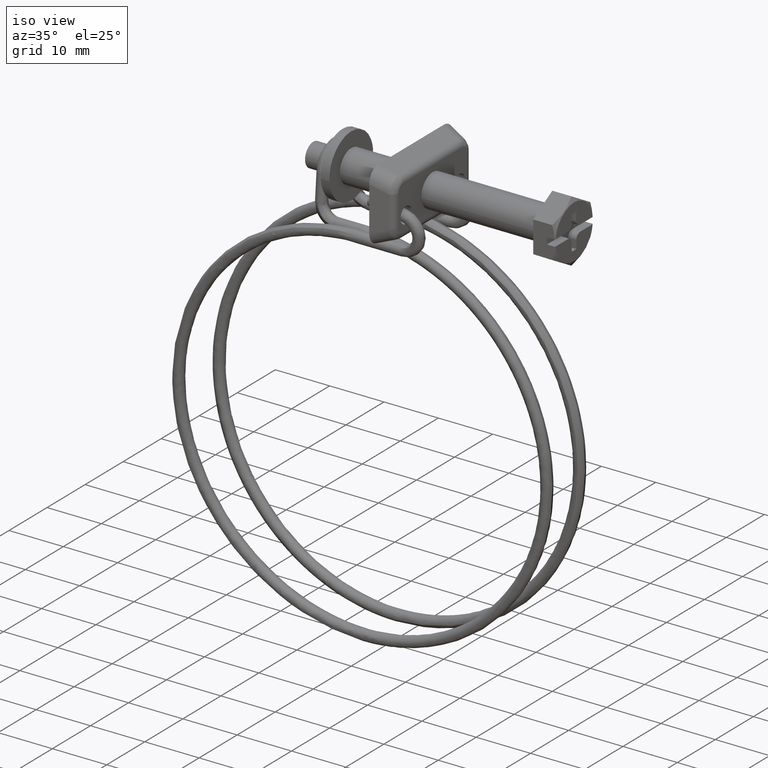
[diagram: clean part render]
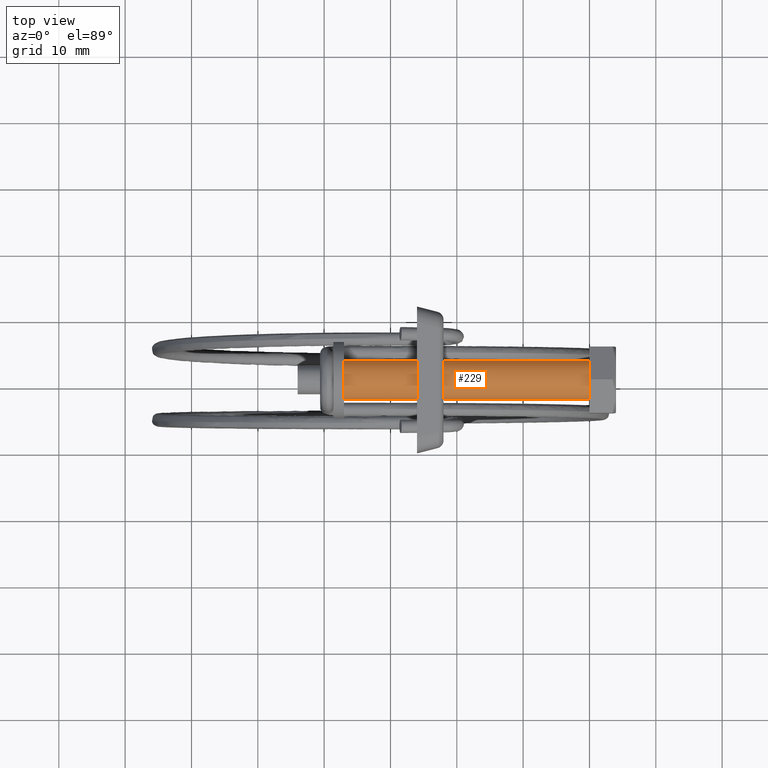
[diagram: tour spotlight — one face highlighted and labeled with its STEP entity id]
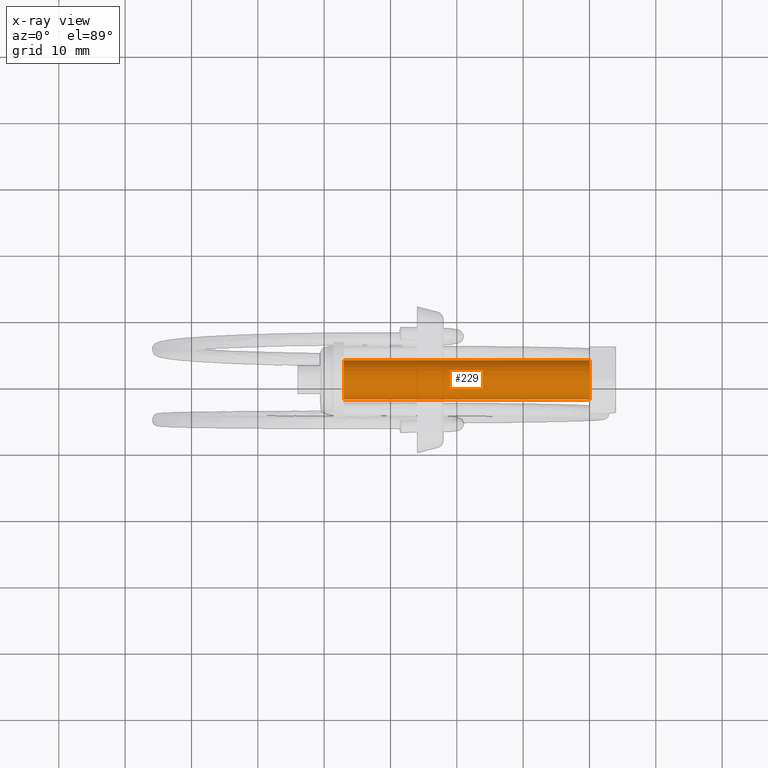
[diagram: x-ray of the same camera — body ghosted, this tour face saturated]
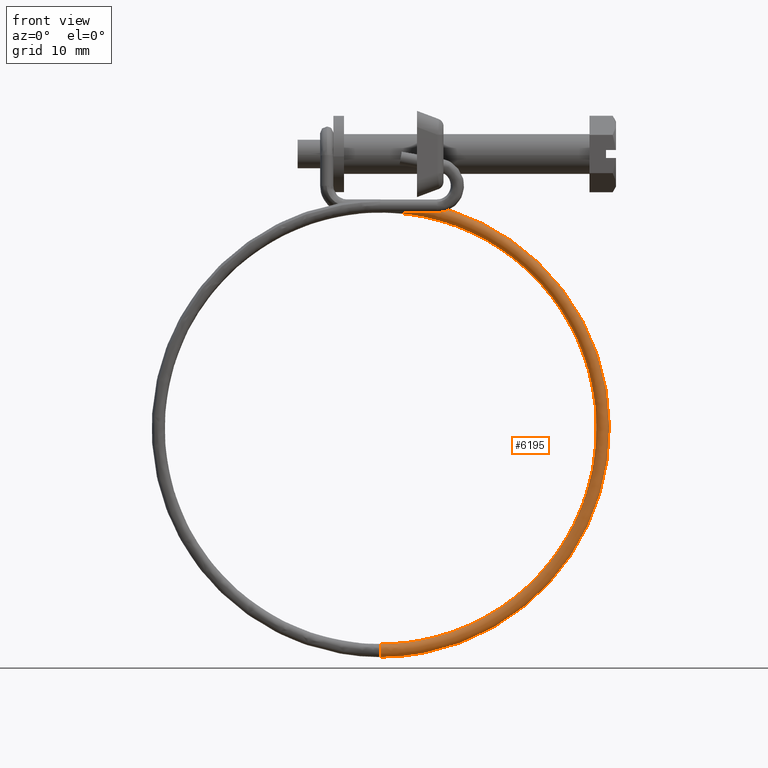
[diagram: tour spotlight — one face highlighted and labeled with its STEP entity id]
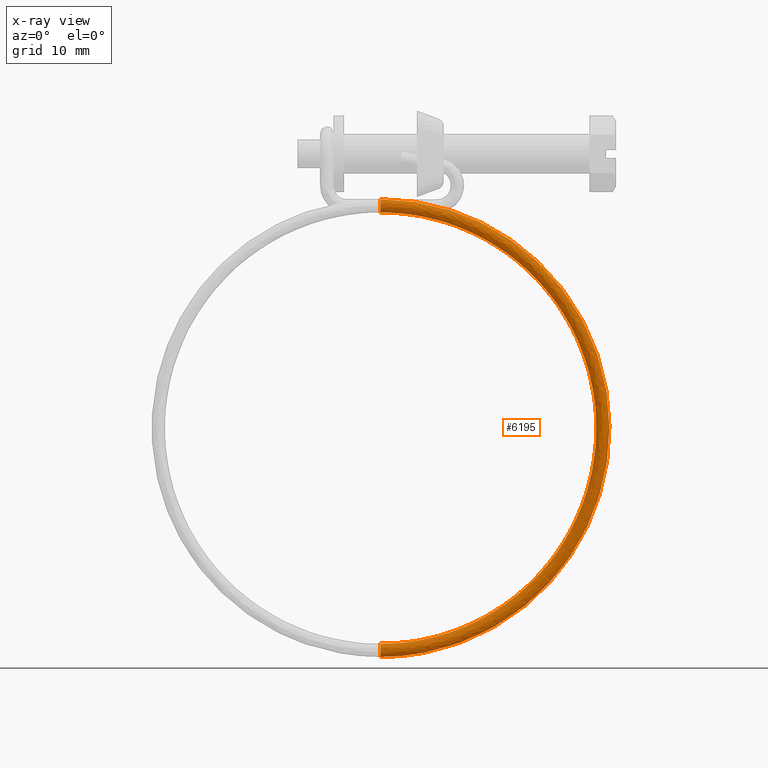
[diagram: x-ray of the same camera — body ghosted, this tour face saturated]
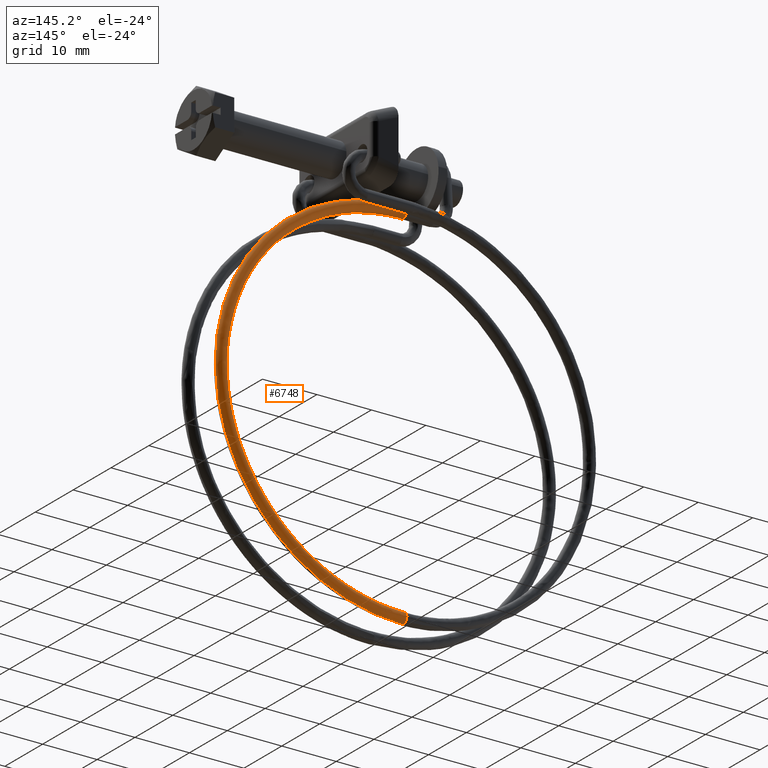
[diagram: tour spotlight — one face highlighted and labeled with its STEP entity id]
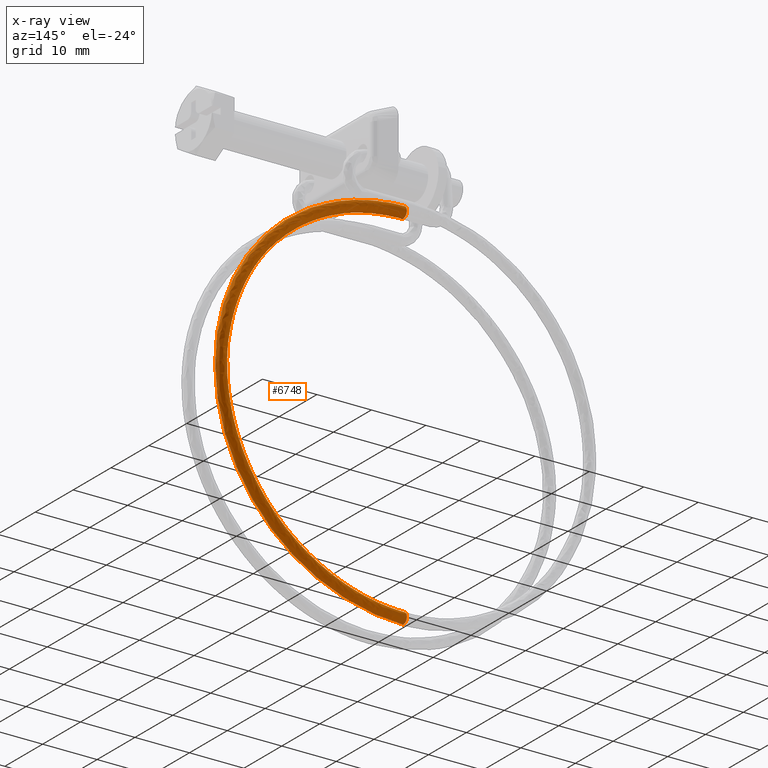
[diagram: x-ray of the same camera — body ghosted, this tour face saturated]
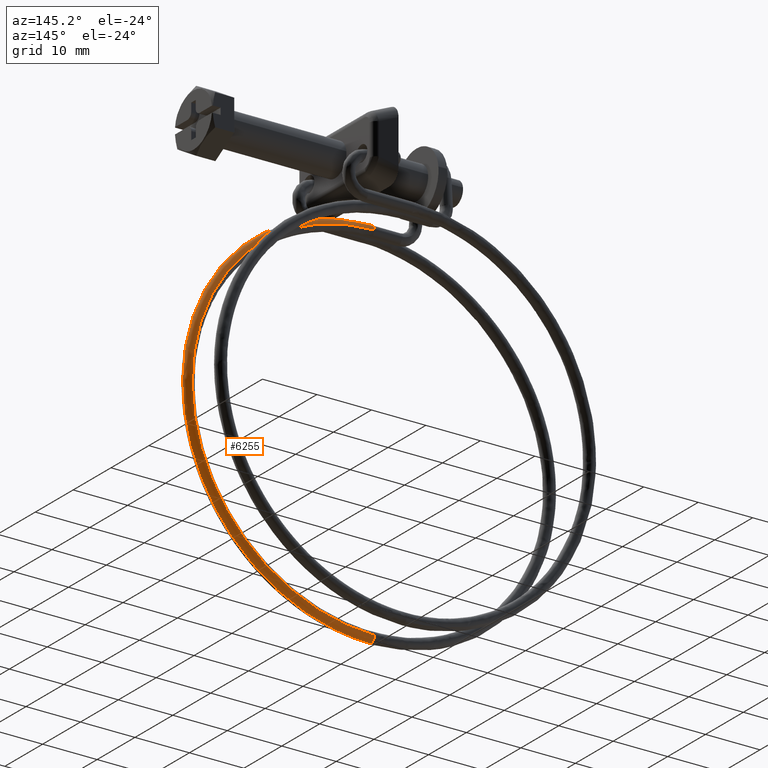
[diagram: tour spotlight — one face highlighted and labeled with its STEP entity id]
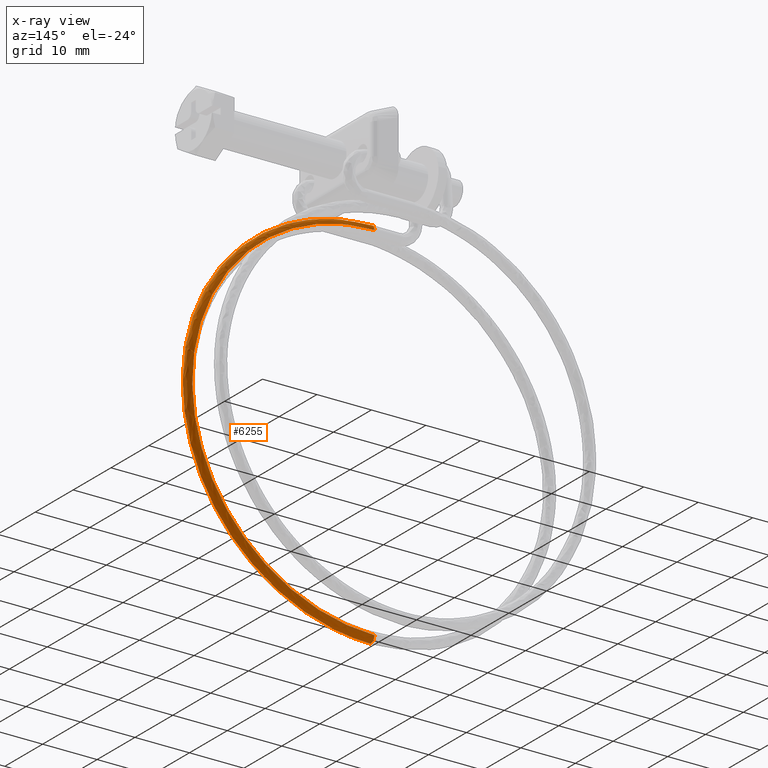
[diagram: x-ray of the same camera — body ghosted, this tour face saturated]
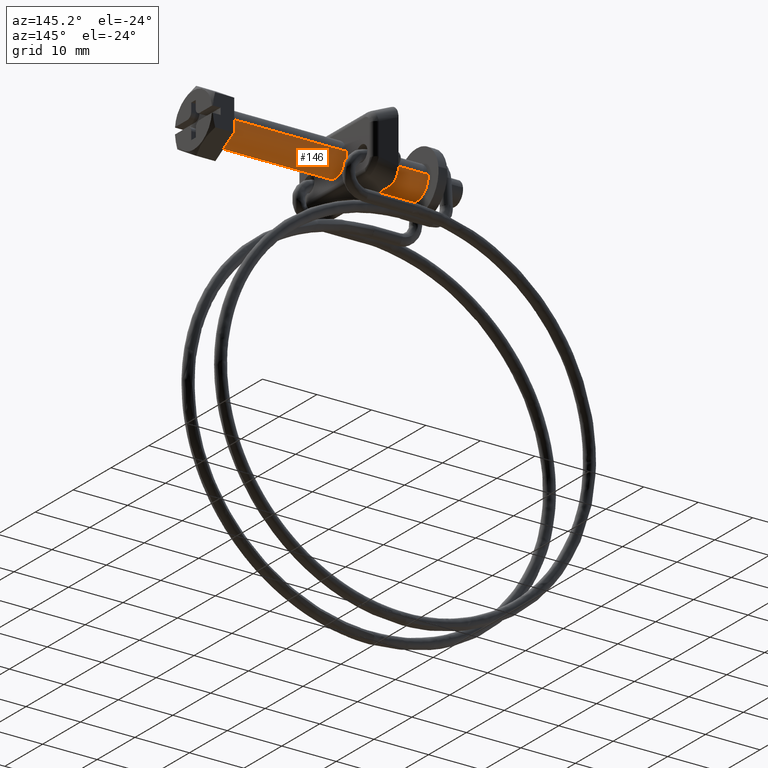
[diagram: tour spotlight — one face highlighted and labeled with its STEP entity id]
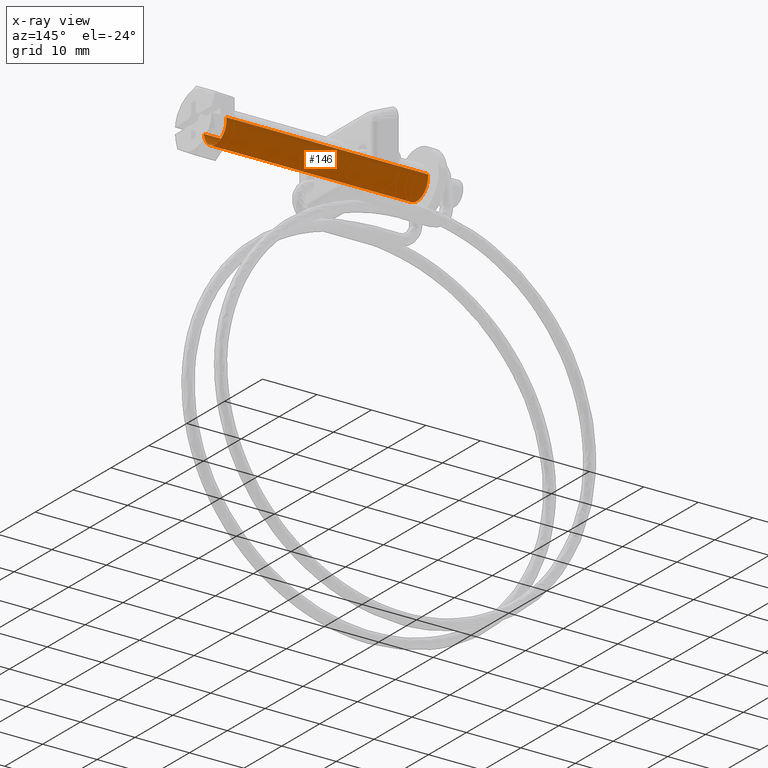
[diagram: x-ray of the same camera — body ghosted, this tour face saturated]
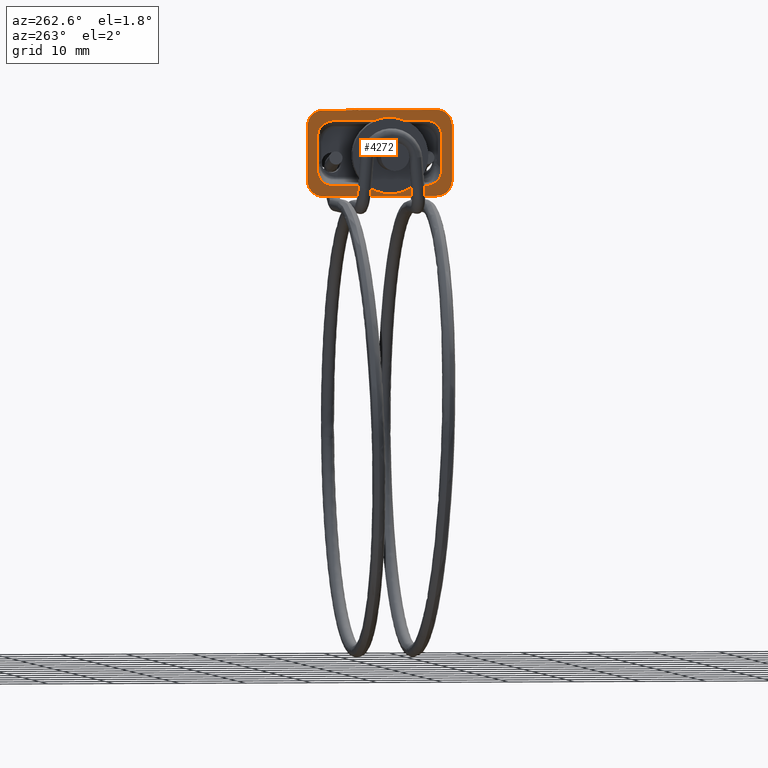
[diagram: tour spotlight — one face highlighted and labeled with its STEP entity id]
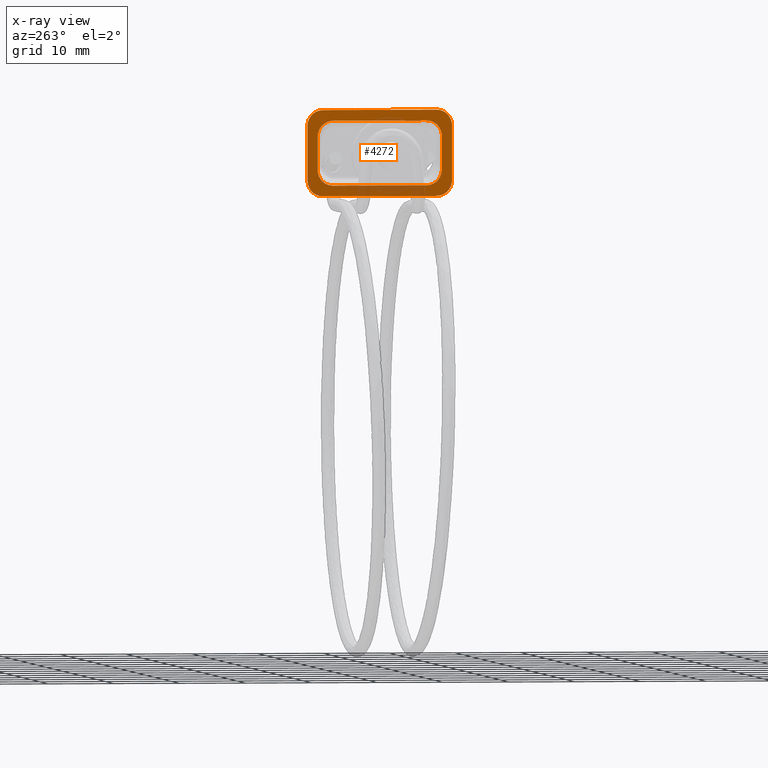
[diagram: x-ray of the same camera — body ghosted, this tour face saturated]
A machine part: a face-by-face anatomy tour. The part has 119 B-rep faces; the first image is the clean iso view, then the 6 largest visible faces are spotlighted one at a time (largest first), each with its STEP entity span.

Face 1 — top view, entity #229. An x-ray twin of the same camera follows (body ghosted, this face saturated) — the face is partly hidden behind the body. In plain terms, the highlighted face is a freeform B-spline surface patch.
Definition (entity closure, byte-faithful):
#66=CARTESIAN_POINT('',(1.362926E-015,2.979028579089363,0.354102703985020));
#67=VERTEX_POINT('',#66);
#85=CARTESIAN_POINT('',(1.387779E-015,-2.994404395260463,-0.183145618690449));
#86=VERTEX_POINT('',#85);
#100=CARTESIAN_POINT('',(-37.0,-2.994404395260463,-0.183145618690449));
#101=VERTEX_POINT('',#100);
#102=CARTESIAN_POINT('',(1.387779E-015,-2.994404395260463,-0.183145618690449));
#103=CARTESIAN_POINT('',(-37.0,-2.994404395260463,-0.183145618690449));
#104=QUASI_UNIFORM_CURVE('',1,(#102,#103),.UNSPECIFIED.,.F.,.U.);
#105=EDGE_CURVE('',#86,#101,#104,.T.);
#122=CARTESIAN_POINT('',(-37.0,2.979028579089363,0.354102703985020));
#123=VERTEX_POINT('',#122);
#139=CARTESIAN_POINT('',(1.362926E-015,2.979028579089363,0.354102703985020));
#140=CARTESIAN_POINT('',(-37.0,2.979028579089363,0.354102703985020));
#141=QUASI_UNIFORM_CURVE('',1,(#139,#140),.UNSPECIFIED.,.F.,.U.);
#142=EDGE_CURVE('',#67,#123,#141,.T.);
#147=CARTESIAN_POINT('',(0.925000000000001,-2.994404395265715,-0.183145618604578));
#148=CARTESIAN_POINT('',(0.925000000000001,-3.177550013870294,2.811258776661137));
#149=CARTESIAN_POINT('',(0.925000000000001,-0.183145618604578,2.994404395265715));
#150=CARTESIAN_POINT('',(0.925000000000001,2.644630472518604,3.167358590197703));
#151=CARTESIAN_POINT('',(0.925000000000001,2.979028579091114,0.354102703970289));
#152=CARTESIAN_POINT('',(-37.948125000000012,-2.994404395265715,-0.183145618604578));
#153=CARTESIAN_POINT('',(-37.948125000000005,-3.177550013870294,2.811258776661137));
#154=CARTESIAN_POINT('',(-37.948125000000012,-0.183145618604578,2.994404395265715));
#155=CARTESIAN_POINT('',(-37.948125000000005,2.644630472518604,3.167358590197703));
#156=CARTESIAN_POINT('',(-37.948125000000012,2.979028579091114,0.354102703970289));
#164=(BOUNDED_SURFACE()B_SPLINE_SURFACE(2,1,((#147,#152),(#148,#153),(#149,#154),(#150,#155),(#151,#156)),.UNSPECIFIED.,.F.,.F.,.U.)B_SPLINE_SURFACE_WITH_KNOTS((3,2,3),(2,2),(0.0,4.970562748477330,9.742302987015567),(0.0,38.873125000000023),.UNSPECIFIED.)GEOMETRIC_REPRESENTATION_ITEM()RATIONAL_B_SPLINE_SURFACE(((1.0,1.0),(0.707106781186548,0.707106781186548),(1.0,1.0),(0.718822509939086,0.718822509939086),(0.977505800795127,0.977505800795127)))REPRESENTATION_ITEM('')SURFACE());
#165=CARTESIAN_POINT('',(0.0,0.0,3.000000000000115));
#166=VERTEX_POINT('',#165);
#167=CARTESIAN_POINT('',(0.0,0.0,3.000000000000115));
#168=CARTESIAN_POINT('',(0.0,2.664523577827677,3.000000000000115));
#169=CARTESIAN_POINT('',(1.362926E-015,2.979028579089363,0.354102703985020));
#177=(BOUNDED_CURVE()B_SPLINE_CURVE(2,(#167,#168,#169),.UNSPECIFIED.,.F.,.U.)B_SPLINE_CURVE_WITH_KNOTS((3,3),(0.500000000000000,0.729562473513973),.UNSPECIFIED.)CURVE()GEOMETRIC_REPRESENTATION_ITEM()RATIONAL_B_SPLINE_CURVE((1.0,0.731050832854858,0.956026754184611))REPRESENTATION_ITEM(''));
#178=EDGE_CURVE('',#166,#67,#177,.T.);
#179=ORIENTED_EDGE('',*,*,#178,.T.);
#180=ORIENTED_EDGE('',*,*,#142,.T.);
#181=CARTESIAN_POINT('',(-37.0,0.0,3.000000000000115));
#182=VERTEX_POINT('',#181);
#183=CARTESIAN_POINT('',(-37.0,0.0,3.000000000000115));
#184=CARTESIAN_POINT('',(-37.0,2.664523577827668,3.000000000000114));
#185=CARTESIAN_POINT('',(-37.0,2.979028579089363,0.354102703985020));
#193=(BOUNDED_CURVE()B_SPLINE_CURVE(2,(#183,#184,#185),.UNSPECIFIED.,.F.,.U.)B_SPLINE_CURVE_WITH_KNOTS((3,3),(0.0,0.229562473513973),.UNSPECIFIED.)CURVE()GEOMETRIC_REPRESENTATION_ITEM()RATIONAL_B_SPLINE_CURVE((1.0,0.731050832854858,0.956026754184610))REPRESENTATION_ITEM(''));
#194=EDGE_CURVE('',#182,#123,#193,.T.);
#195=ORIENTED_EDGE('',*,*,#194,.F.);
#196=CARTESIAN_POINT('',(-37.000000000000007,-2.994404395260463,-0.183145618690449));
#197=CARTESIAN_POINT('',(-37.0,-3.000000000000116,-0.091658289981882));
#198=CARTESIAN_POINT('',(-37.0,-3.000000000000115,0.0));
#199=CARTESIAN_POINT('',(-37.000000000000007,-3.000000000000114,3.000000000000114));
#200=CARTESIAN_POINT('',(-37.0,0.0,3.000000000000115));
#208=(BOUNDED_CURVE()B_SPLINE_CURVE(2,(#196,#197,#198,#199,#200),.UNSPECIFIED.,.F.,.U.)B_SPLINE_CURVE_WITH_KNOTS((3,2,3),(0.739332962232072,0.750000000000000,1.0),.UNSPECIFIED.)CURVE()GEOMETRIC_REPRESENTATION_ITEM()RATIONAL_B_SPLINE_CURVE((0.976072041651992,0.987502787891788,1.0,0.707106781186547,1.0))REPRESENTATION_ITEM(''));
#209=EDGE_CURVE('',#101,#182,#208,.T.);
#210=ORIENTED_EDGE('',*,*,#209,.F.);
#211=ORIENTED_EDGE('',*,*,#105,.F.);
#212=CARTESIAN_POINT('',(1.387779E-015,-2.994404395260463,-0.183145618690449));
#213=CARTESIAN_POINT('',(0.0,-3.000000000000116,-0.091658289981882));
#214=CARTESIAN_POINT('',(0.0,-3.000000000000115,0.0));
#215=CARTESIAN_POINT('',(0.0,-3.000000000000114,3.000000000000114));
#216=CARTESIAN_POINT('',(0.0,0.0,3.000000000000115));
#224=(BOUNDED_CURVE()B_SPLINE_CURVE(2,(#212,#213,#214,#215,#216),.UNSPECIFIED.,.F.,.U.)B_SPLINE_CURVE_WITH_KNOTS((3,2,3),(0.239332962232072,0.250000000000000,0.500000000000000),.UNSPECIFIED.)CURVE()GEOMETRIC_REPRESENTATION_ITEM()RATIONAL_B_SPLINE_CURVE((0.976072041651992,0.987502787891788,1.0,0.707106781186547,1.0))REPRESENTATION_ITEM(''));
#225=EDGE_CURVE('',#86,#166,#224,.T.);
#226=ORIENTED_EDGE('',*,*,#225,.T.);
#227=EDGE_LOOP('',(#179,#180,#195,#210,#211,#226));
#228=FACE_OUTER_BOUND('',#227,.T.);
#229=ADVANCED_FACE('',(#228),#164,.T.);

Face 2 — front view, entity #6195. An x-ray twin of the same camera follows (body ghosted, this face saturated) — the face is partly hidden behind the body. In plain terms, the highlighted face is a freeform B-spline surface patch.
Definition (entity closure, byte-faithful):
#4745=CARTESIAN_POINT('',(-31.499995773581450,-4.979169630854070,-7.116017805915258));
#4746=VERTEX_POINT('',#4745);
#4747=CARTESIAN_POINT('',(-31.499995942724869,-5.071626581818150,-8.486079222182410));
#4748=VERTEX_POINT('',#4747);
#4749=CARTESIAN_POINT('',(-31.499995773581443,-4.979169630854070,-7.116017805915257));
#4750=CARTESIAN_POINT('',(-31.499995810232296,-5.300002000000001,-7.412889325838219));
#4751=CARTESIAN_POINT('',(-31.499995864196698,-5.300002000000000,-7.850001000000611));
#4752=CARTESIAN_POINT('',(-31.499995908522209,-5.300002000000001,-8.209037689363214));
#4753=CARTESIAN_POINT('',(-31.499995942724865,-5.071626581818151,-8.486079222182410));
#4761=(BOUNDED_CURVE()B_SPLINE_CURVE(2,(#4749,#4750,#4751,#4752,#4753),.UNSPECIFIED.,.F.,.U.)B_SPLINE_CURVE_WITH_KNOTS((3,2,3),(0.119149212875292,0.250000000000000,0.360504626605923),.UNSPECIFIED.)CURVE()GEOMETRIC_REPRESENTATION_ITEM()RATIONAL_B_SPLINE_CURVE((0.853874230136350,0.846698767099081,1.0,0.870535776878450,0.855522718835882))REPRESENTATION_ITEM(''));
#4762=EDGE_CURVE('',#4746,#4748,#4761,.T.);
#4837=CARTESIAN_POINT('',(-31.499995740739919,-4.300002000000000,-6.850001000000619));
#4838=VERTEX_POINT('',#4837);
#4839=CARTESIAN_POINT('',(-31.499995740739919,-4.300002000000000,-6.850001000000619));
#4840=CARTESIAN_POINT('',(-31.499995740739916,-4.691682295941983,-6.850001000000619));
#4841=CARTESIAN_POINT('',(-31.499995773581443,-4.979169630854070,-7.116017805915257));
#4849=(BOUNDED_CURVE()B_SPLINE_CURVE(2,(#4839,#4840,#4841),.UNSPECIFIED.,.F.,.U.)B_SPLINE_CURVE_WITH_KNOTS((3,3),(0.0,0.119149212875292),.UNSPECIFIED.)CURVE()GEOMETRIC_REPRESENTATION_ITEM()RATIONAL_B_SPLINE_CURVE((1.0,0.860408014087466,0.853874230136350))REPRESENTATION_ITEM(''));
#4850=EDGE_CURVE('',#4838,#4746,#4849,.T.);
#4852=CARTESIAN_POINT('',(-31.499995740734381,-4.287435959277044,-6.850079955807225));
#4853=VERTEX_POINT('',#4852);
#4854=CARTESIAN_POINT('',(-31.499995740734374,-4.287435959277044,-6.850079955807225));
#4855=CARTESIAN_POINT('',(-31.499995740739912,-4.293718731168408,-6.850001000000619));
#4856=CARTESIAN_POINT('',(-31.499995740739919,-4.300002000000000,-6.850001000000619));
#4864=(BOUNDED_CURVE()B_SPLINE_CURVE(2,(#4854,#4855,#4856),.UNSPECIFIED.,.F.,.U.)B_SPLINE_CURVE_WITH_KNOTS((3,3),(0.997784295626388,1.0),.UNSPECIFIED.)CURVE()GEOMETRIC_REPRESENTATION_ITEM()RATIONAL_B_SPLINE_CURVE((0.994854294964254,0.997404140856295,1.0))REPRESENTATION_ITEM(''));
#4865=EDGE_CURVE('',#4853,#4838,#4864,.T.);
#4867=CARTESIAN_POINT('',(-31.499995872737362,-3.302436326312575,-7.919734253764769));
#4868=VERTEX_POINT('',#4867);
#4884=CARTESIAN_POINT('',(-31.499995987653481,-4.300002000000000,-8.850001000000603));
#4885=VERTEX_POINT('',#4884);
#4886=CARTESIAN_POINT('',(-31.499995987653481,-4.300002000000000,-8.850001000000603));
#4887=CARTESIAN_POINT('',(-31.499995987653485,-3.367465156835688,-8.850001000000603));
#4888=CARTESIAN_POINT('',(-31.499995872737358,-3.302436326312575,-7.919734253764769));
#4896=(BOUNDED_CURVE()B_SPLINE_CURVE(2,(#4886,#4887,#4888),.UNSPECIFIED.,.F.,.U.)B_SPLINE_CURVE_WITH_KNOTS((3,3),(0.500000000000000,0.737833685780411),.UNSPECIFIED.)CURVE()GEOMETRIC_REPRESENTATION_ITEM()RATIONAL_B_SPLINE_CURVE((1.0,0.721360504918033,0.972879874790761))REPRESENTATION_ITEM(''));
#4897=EDGE_CURVE('',#4885,#4868,#4896,.T.);
#4899=CARTESIAN_POINT('',(-31.499995942724869,-5.071626581818150,-8.486079222182410));
#4900=CARTESIAN_POINT('',(-31.499995987653474,-4.771632615754759,-8.850001000000603));
#4901=CARTESIAN_POINT('',(-31.499995987653481,-4.300002000000000,-8.850001000000603));
#4909=(BOUNDED_CURVE()B_SPLINE_CURVE(2,(#4899,#4900,#4901),.UNSPECIFIED.,.F.,.U.)B_SPLINE_CURVE_WITH_KNOTS((3,3),(0.360504626605923,0.500000000000000),.UNSPECIFIED.)CURVE()GEOMETRIC_REPRESENTATION_ITEM()RATIONAL_B_SPLINE_CURVE((0.855522718835882,0.836571004308098,1.0))REPRESENTATION_ITEM(''));
#4910=EDGE_CURVE('',#4748,#4885,#4909,.T.);
#6059=CARTESIAN_POINT('',(-36.212876422466501,-3.300955247300955,-8.232202351595346));
#6060=CARTESIAN_POINT('',(2.439412669676429,-3.300955247300955,-2.731732230659489));
#6061=CARTESIAN_POINT('',(1.948813064541638,-3.300955247300955,-41.770353308271126));
#6062=CARTESIAN_POINT('',(1.469827518403704,-3.300955247300955,-79.884805585896629));
#6063=CARTESIAN_POINT('',(-36.259792165504486,-3.300955247300955,-74.461089324471118));
#6064=CARTESIAN_POINT('',(-36.211389964809776,-3.301692777678187,-8.242647820765825));
#6065=CARTESIAN_POINT('',(2.428708060578798,-3.301692777678187,-2.743912567285420));
#6066=CARTESIAN_POINT('',(1.938263192270113,-3.301692777678188,-41.770220727687388));
#6067=CARTESIAN_POINT('',(1.459428719843581,-3.301692777678186,-79.872651574165161));
#6068=CARTESIAN_POINT('',(-36.258290910458818,-3.301692777678186,-74.450645971760196));
#6069=CARTESIAN_POINT('',(-36.077168095880211,-3.368289162160302,-9.185836742128529));
#6070=CARTESIAN_POINT('',(1.462119720349909,-3.368289162160302,-3.843753883797686));
#6071=CARTESIAN_POINT('',(0.985647040147707,-3.368289162160303,-41.758249169902406));
#6072=CARTESIAN_POINT('',(0.520453989525997,-3.368289162160301,-78.775187302516059));
#6073=CARTESIAN_POINT('',(-36.122732889644851,-3.368289162160303,-73.507648159210646));
#6074=CARTESIAN_POINT('',(-36.078839971827477,-4.312568039883352,-9.174088322262717));
#6075=CARTESIAN_POINT('',(1.474159604832431,-4.312568039883352,-3.830054191954949));
#6076=CARTESIAN_POINT('',(0.997512886186186,-4.312568039883352,-41.758398288370742));
#6077=CARTESIAN_POINT('',(0.532149917166051,-4.312568039883352,-78.788857385740144));
#6078=CARTESIAN_POINT('',(-36.124421408783100,-4.312568039883352,-73.519394198613199));
#6079=CARTESIAN_POINT('',(-36.080610364009729,-5.312489084087168,-9.161647620117300));
#6080=CARTESIAN_POINT('',(1.486908946311818,-5.312489084087169,-3.815547238028703));
#6081=CARTESIAN_POINT('',(1.010077933907851,-5.312489084087169,-41.758556193729078));
#6082=CARTESIAN_POINT('',(0.544535033951650,-5.312489084087170,-78.803332986343136));
#6083=CARTESIAN_POINT('',(-36.126209424865735,-5.312489084087169,-73.531832380025193));
#6084=CARTESIAN_POINT('',(-36.221486281637475,-5.299923044203815,-8.171700111168367));
#6085=CARTESIAN_POINT('',(2.501415900238063,-5.299923044203815,-2.661181291970555));
#6086=CARTESIAN_POINT('',(2.009920028549502,-5.299923044203815,-41.771121241450757));
#6087=CARTESIAN_POINT('',(1.530059433348640,-5.299923044203815,-79.955204045547092));
#6088=CARTESIAN_POINT('',(-36.268487734103012,-5.299923044203816,-74.521579305942240));
#6089=CARTESIAN_POINT('',(-36.362362199265213,-5.287357004320462,-7.181752602219439));
#6090=CARTESIAN_POINT('',(3.515922854164314,-5.287357004320463,-1.506815345912405));
#6091=CARTESIAN_POINT('',(3.009762123191153,-5.287357004320464,-41.783686289172422));
#6092=CARTESIAN_POINT('',(2.515583832745637,-5.287357004320463,-81.107075104751090));
#6093=CARTESIAN_POINT('',(-36.410766043340303,-5.287357004320463,-75.511326231859286));
#6094=CARTESIAN_POINT('',(-36.360573313001517,-4.276990465927327,-7.194323263907895));
#6095=CARTESIAN_POINT('',(3.503040328996970,-4.276990465927326,-1.521473844106897));
#6096=CARTESIAN_POINT('',(2.997065816972903,-4.276990465927328,-41.783526734284344));
#6097=CARTESIAN_POINT('',(2.503069337079407,-4.276990465927328,-81.092448287406654));
#6098=CARTESIAN_POINT('',(-36.408959349071303,-4.276990465927327,-75.498758117236605));
#6099=CARTESIAN_POINT('',(-36.360554978278522,-4.266634977734404,-7.194452103624712));
#6100=CARTESIAN_POINT('',(3.502908292916798,-4.266634977734405,-1.521624082559192));
#6101=CARTESIAN_POINT('',(2.996935689495257,-4.266634977734404,-41.783525098968120));
#6102=CARTESIAN_POINT('',(2.502941073021574,-4.266634977734405,-81.092298373658963));
#6103=CARTESIAN_POINT('',(-36.408940831829824,-4.266634977734404,-75.498629303625279));
#6111=(BOUNDED_SURFACE()B_SPLINE_SURFACE(2,2,((#6059,#6064,#6069,#6074,#6079,#6084,#6089,#6094,#6099),(#6060,#6065,#6070,#6075,#6080,#6085,#6090,#6095,#6100),(#6061,#6066,#6071,#6076,#6081,#6086,#6091,#6096,#6101),(#6062,#6067,#6072,#6077,#6082,#6087,#6092,#6097,#6102),(#6063,#6068,#6073,#6078,#6083,#6088,#6093,#6098,#6103)),.UNSPECIFIED.,.F.,.F.,.U.)B_SPLINE_SURFACE_WITH_KNOTS((3,2,3),(3,1,2,2,1,3),(0.0,63.486434264453322,125.988804317780190),(0.0,0.024522023044111,1.615102102556800,3.271956352049184,4.928810601541568,4.953394222985932),.UNSPECIFIED.)GEOMETRIC_REPRESENTATION_ITEM()RATIONAL_B_SPLINE_SURFACE(((0.981495576529468,0.977523580923256,0.715914722494261,0.995954790779894,0.704246386315693,0.995954790779894,0.704246386315693,1.000283022421081,1.004611254062268),(0.639902863773721,0.637313253158971,0.466752873978024,0.649329796332585,0.459145502213251,0.649329796332585,0.459145502213251,0.652151661136158,0.654973525939731),(0.985482057635262,0.981493929215195,0.718822509939086,1.0,0.707106781186548,1.0,0.707106781186548,1.004345811357358,1.008691622714717),(0.645259474532053,0.642648186352059,0.470660050532115,0.654765319705973,0.462988997649871,0.654765319705973,0.462988997649871,0.657610806268755,0.660456292831538),(0.971071040266147,0.967141231515612,0.708310939894979,0.985376682145085,0.696766533967891,0.985376682145085,0.696766533967891,0.989658943321627,0.993941204498170)))REPRESENTATION_ITEM('')SURFACE());
#6112=CARTESIAN_POINT('',(-31.500000000001211,-4.300002000000002,-73.850001000000091));
#6113=VERTEX_POINT('',#6112);
#6114=CARTESIAN_POINT('',(-31.499999998038490,-3.302485879301839,-74.780271448700688));
#6115=VERTEX_POINT('',#6114);
#6116=CARTESIAN_POINT('',(-31.500000000001211,-4.300002000000002,-73.850001000000091));
#6117=CARTESIAN_POINT('',(-31.499999999725699,-4.038195655369905,-73.850000495567741));
#6118=CARTESIAN_POINT('',(-31.499999999346109,-3.777998799463927,-73.957772896964102));
#6119=CARTESIAN_POINT('',(-31.499999998626581,-3.424196120206559,-74.311556089768061));
#6120=CARTESIAN_POINT('',(-31.499999998289951,-3.319730346469261,-74.542534409383535));
#6121=CARTESIAN_POINT('',(-31.499999998038490,-3.302485879301839,-74.780271448700688));
#6122=B_SPLINE_CURVE_WITH_KNOTS('',3,(#6116,#6117,#6118,#6119,#6120,#6121),.UNSPECIFIED.,.F.,.U.,(4,2,4),(0.500000000000000,0.625000000000000,0.738888475216907),.UNSPECIFIED.);
#6123=EDGE_CURVE('',#6113,#6115,#6122,.T.);
#6124=ORIENTED_EDGE('',*,*,#6123,.F.);
#6125=CARTESIAN_POINT('',(-31.500000000001240,-5.028950504936020,-75.534537187868466));
#6126=VERTEX_POINT('',#6125);
#6127=CARTESIAN_POINT('',(-31.500000000001240,-5.028950504936020,-75.534537187868466));
#6128=CARTESIAN_POINT('',(-31.500000000001268,-5.200678716957211,-75.351169085010667));
#6129=CARTESIAN_POINT('',(-31.500000000001268,-5.300001999999999,-75.101327902931885));
#6130=CARTESIAN_POINT('',(-31.500000000001240,-5.300002000000001,-74.588201612200947));
#6131=CARTESIAN_POINT('',(-31.500000000001229,-5.192228903609815,-74.328014341236823));
#6132=CARTESIAN_POINT('',(-31.500000000001219,-4.821988658763284,-73.957774096390295));
#6133=CARTESIAN_POINT('',(-31.500000000001211,-4.561801387799152,-73.850001000000091));
#6134=CARTESIAN_POINT('',(-31.500000000001211,-4.300002000000002,-73.850001000000091));
#6135=B_SPLINE_CURVE_WITH_KNOTS('',3,(#6127,#6128,#6129,#6130,#6131,#6132,#6133,#6134),.UNSPECIFIED.,.F.,.U.,(4,2,2,4),(0.130000243199282,0.250000000000000,0.375000000000000,0.500000000000000),.UNSPECIFIED.);
#6136=EDGE_CURVE('',#6126,#6113,#6135,.T.);
#6137=ORIENTED_EDGE('',*,*,#6136,.F.);
#6138=CARTESIAN_POINT('',(-31.500000000001240,-4.300002000000005,-75.850001000000105));
#6139=VERTEX_POINT('',#6138);
#6140=CARTESIAN_POINT('',(-31.500000000001290,-4.300001999999999,-75.850001000000105));
#6141=CARTESIAN_POINT('',(-31.500000000001279,-4.561801387799146,-75.850001000000105));
#6142=CARTESIAN_POINT('',(-31.500000000001279,-4.821988658763279,-75.742227903609930));
#6143=CARTESIAN_POINT('',(-31.500000000001268,-5.014513946252123,-75.549702616121067));
#6144=CARTESIAN_POINT('',(-31.500000000001268,-5.021795344036881,-75.542177331933516));
#6145=CARTESIAN_POINT('',(-31.500000000001240,-5.028950504936020,-75.534537187868466));
#6146=B_SPLINE_CURVE_WITH_KNOTS('',3,(#6140,#6141,#6142,#6143,#6144,#6145),.UNSPECIFIED.,.F.,.U.,(4,2,4),(0.0,0.125000000000000,0.130000243199282),.UNSPECIFIED.);
#6147=EDGE_CURVE('',#6139,#6126,#6146,.T.);
#6148=ORIENTED_EDGE('',*,*,#6147,.F.);
#6149=CARTESIAN_POINT('',(-31.499999999980400,-4.287435984471268,-75.849920191923019));
#6150=VERTEX_POINT('',#6149);
#6151=CARTESIAN_POINT('',(-31.499999999980400,-4.287435984471268,-75.849920191923019));
#6152=CARTESIAN_POINT('',(-31.499999999987349,-4.291624042898494,-75.849974639911892));
#6153=CARTESIAN_POINT('',(-31.499999999994301,-4.295812815059978,-75.850001617475982));
#6154=CARTESIAN_POINT('',(-31.500000000001240,-4.300002000000005,-75.850001000000105));
#6155=B_SPLINE_CURVE_WITH_KNOTS('',3,(#6151,#6152,#6153,#6154),.UNSPECIFIED.,.F.,.U.,(4,4),(0.997999815404201,1.0),.UNSPECIFIED.);
#6156=EDGE_CURVE('',#6150,#6139,#6155,.T.);
#6157=ORIENTED_EDGE('',*,*,#6156,.F.);
#6158=CARTESIAN_POINT('',(-31.499995740734377,-4.287435959277044,-6.850079955807225));
#6159=CARTESIAN_POINT('',(3.436206789826106,-4.287435959277045,-6.850084268950391));
#6160=CARTESIAN_POINT('',(2.997197075461941,-4.287435972032451,-41.783527446041042));
#6161=CARTESIAN_POINT('',(2.569083612011924,-4.287435984471268,-75.849920191903749));
#6162=CARTESIAN_POINT('',(-31.499999999980407,-4.287435984471268,-75.849920191923019));
#6170=(BOUNDED_CURVE()B_SPLINE_CURVE(2,(#6158,#6159,#6160,#6161,#6162),.UNSPECIFIED.,.F.,.U.)B_SPLINE_CURVE_WITH_KNOTS((3,2,3),(-3.809258991670059,-2.0,-0.221563029386153),.UNSPECIFIED.)CURVE()GEOMETRIC_REPRESENTATION_ITEM()RATIONAL_B_SPLINE_CURVE((0.939140851666384,0.680933068004218,1.0,0.686368601414080,0.930510877218687))REPRESENTATION_ITEM(''));
#6171=EDGE_CURVE('',#4853,#6150,#6170,.T.);
#6172=ORIENTED_EDGE('',*,*,#6171,.F.);
#6173=ORIENTED_EDGE('',*,*,#4865,.T.);
#6174=ORIENTED_EDGE('',*,*,#4850,.T.);
#6175=ORIENTED_EDGE('',*,*,#4762,.T.);
#6176=ORIENTED_EDGE('',*,*,#4910,.T.);
#6177=ORIENTED_EDGE('',*,*,#4897,.T.);
#6178=CARTESIAN_POINT('',(-31.499995872737362,-3.302436326312576,-7.919734253764769));
#6179=CARTESIAN_POINT('',(2.353025653701640,-3.302436326314124,-7.919738433289593));
#6180=CARTESIAN_POINT('',(1.927627235063026,-3.302461414148097,-41.770088939739480));
#6181=CARTESIAN_POINT('',(1.512787234077387,-3.302485879300328,-74.780271446763550));
#6182=CARTESIAN_POINT('',(-31.499999998038493,-3.302485879301839,-74.780271448700688));
#6190=(BOUNDED_CURVE()B_SPLINE_CURVE(2,(#6178,#6179,#6180,#6181,#6182),.UNSPECIFIED.,.F.,.U.)B_SPLINE_CURVE_WITH_KNOTS((3,2,3),(-3.809258991666110,-2.0,-0.221563029457088),.UNSPECIFIED.)CURVE()GEOMETRIC_REPRESENTATION_ITEM()RATIONAL_B_SPLINE_CURVE((0.918015630266464,0.665616023928027,0.977505800795127,0.670929289378129,0.909579780165191))REPRESENTATION_ITEM(''));
#6191=EDGE_CURVE('',#4868,#6115,#6190,.T.);
#6192=ORIENTED_EDGE('',*,*,#6191,.T.);
#6193=EDGE_LOOP('',(#6124,#6137,#6148,#6157,#6172,#6173,#6174,#6175,#6176,#6177,#6192));
#6194=FACE_OUTER_BOUND('',#6193,.T.);
#6195=ADVANCED_FACE('',(#6194),#6111,.T.);

Face 3 — auxiliary view, entity #6748. An x-ray twin of the same camera follows (body ghosted, this face saturated) — the face is partly hidden behind the body. In plain terms, the highlighted face is a freeform B-spline surface patch.
Definition (entity closure, byte-faithful):
#5491=CARTESIAN_POINT('',(-31.500000275167260,5.025376954941821,-8.538354960361048));
#5492=VERTEX_POINT('',#5491);
#5493=CARTESIAN_POINT('',(-31.499995987655879,4.300002000000000,-8.850001000000333));
#5494=VERTEX_POINT('',#5493);
#5495=CARTESIAN_POINT('',(-31.500000275167253,5.025376954941821,-8.538354960361048));
#5496=CARTESIAN_POINT('',(-31.499995987655879,4.729636910849711,-8.850001000000333));
#5497=CARTESIAN_POINT('',(-31.499995987655879,4.300002000000000,-8.850001000000333));
#5505=(BOUNDED_CURVE()B_SPLINE_CURVE(2,(#5495,#5496,#5497),.UNSPECIFIED.,.F.,.U.)B_SPLINE_CURVE_WITH_KNOTS((3,3),(0.371049270618337,0.500000000000000),.UNSPECIFIED.)CURVE()GEOMETRIC_REPRESENTATION_ITEM()RATIONAL_B_SPLINE_CURVE((0.853699680330452,0.848924823212249,1.0))REPRESENTATION_ITEM(''));
#5506=EDGE_CURVE('',#5492,#5494,#5505,.T.);
#5508=CARTESIAN_POINT('',(-31.499995819446081,3.364493186951530,-7.496697644930833));
#5509=VERTEX_POINT('',#5508);
#5510=CARTESIAN_POINT('',(-31.499995987655879,4.300002000000000,-8.850001000000333));
#5511=CARTESIAN_POINT('',(-31.499995987655875,3.300001999999999,-8.850001000000333));
#5512=CARTESIAN_POINT('',(-31.499995864199100,3.300002000000000,-7.850001000000341));
#5513=CARTESIAN_POINT('',(-31.499995841663580,3.300002000000000,-7.667463285530560));
#5514=CARTESIAN_POINT('',(-31.499995819446081,3.364493186951530,-7.496697644930833));
#5522=(BOUNDED_CURVE()B_SPLINE_CURVE(2,(#5510,#5511,#5512,#5513,#5514),.UNSPECIFIED.,.F.,.U.)B_SPLINE_CURVE_WITH_KNOTS((3,2,3),(0.500000000000000,0.750000000000000,0.810000234325968),.UNSPECIFIED.)CURVE()GEOMETRIC_REPRESENTATION_ITEM()RATIONAL_B_SPLINE_CURVE((1.0,0.707106781186548,1.0,0.929705352954823,0.893152268266221))REPRESENTATION_ITEM(''));
#5523=EDGE_CURVE('',#5494,#5509,#5522,.T.);
#5525=CARTESIAN_POINT('',(-31.500023498905492,4.300002000001638,-6.850001000019262));
#5526=VERTEX_POINT('',#5525);
#5540=CARTESIAN_POINT('',(-31.500019720620021,4.988355960355732,-7.124626045061081));
#5541=VERTEX_POINT('',#5540);
#5542=CARTESIAN_POINT('',(-31.500023498905492,4.300002000001638,-6.850001000019262));
#5543=CARTESIAN_POINT('',(-31.500023498905492,4.698960562646876,-6.850001000019262));
#5544=CARTESIAN_POINT('',(-31.500019720620024,4.988355960355732,-7.124626045061082));
#5552=(BOUNDED_CURVE()B_SPLINE_CURVE(2,(#5542,#5543,#5544),.UNSPECIFIED.,.F.,.U.)B_SPLINE_CURVE_WITH_KNOTS((3,3),(0.0,0.121049270616473),.UNSPECIFIED.)CURVE()GEOMETRIC_REPRESENTATION_ITEM()RATIONAL_B_SPLINE_CURVE((1.0,0.858181957976482,0.853699680330590))REPRESENTATION_ITEM(''));
#5553=EDGE_CURVE('',#5526,#5541,#5552,.T.);
#5650=CARTESIAN_POINT('',(-31.500019720620021,4.988355960355732,-7.124626045061081));
#5651=CARTESIAN_POINT('',(-31.500015653177325,5.300002000001171,-7.420366089156837));
#5652=CARTESIAN_POINT('',(-31.500009743280678,5.300002000000819,-7.850001000009797));
#5653=CARTESIAN_POINT('',(-31.500004255356377,5.300002000000492,-8.248959562658419));
#5654=CARTESIAN_POINT('',(-31.500000275167263,5.025376954941821,-8.538354960361048));
#5662=(BOUNDED_CURVE()B_SPLINE_CURVE(2,(#5650,#5651,#5652,#5653,#5654),.UNSPECIFIED.,.F.,.U.)B_SPLINE_CURVE_WITH_KNOTS((3,2,3),(0.121049270616473,0.250000000000000,0.371049270618337),.UNSPECIFIED.)CURVE()GEOMETRIC_REPRESENTATION_ITEM()RATIONAL_B_SPLINE_CURVE((0.853699680330590,0.848924823210065,1.0,0.858181957974298,0.853699680330452))REPRESENTATION_ITEM(''));
#5663=EDGE_CURVE('',#5541,#5492,#5662,.T.);
#6610=CARTESIAN_POINT('',(-36.210153388847004,3.373633575588953,-74.898471644348064));
#6611=CARTESIAN_POINT('',(2.623226272728079,3.373633575588954,-80.350618085013494));
#6612=CARTESIAN_POINT('',(2.376837504595895,3.373633575588953,-41.137143751241005));
#6613=CARTESIAN_POINT('',(2.132964416408467,3.373633575588953,-2.324047047072587));
#6614=CARTESIAN_POINT('',(-36.290828075065193,3.373633575588954,-7.812955902432068));
#6615=CARTESIAN_POINT('',(-36.208466096474808,3.369050419431415,-74.886453760015186));
#6616=CARTESIAN_POINT('',(2.611002496844007,3.369050419431415,-80.336647108213796));
#6617=CARTESIAN_POINT('',(2.364701991206638,3.369050419431415,-41.137220001923851));
#6618=CARTESIAN_POINT('',(2.120916264335822,3.369050419431415,-2.338027100159303));
#6619=CARTESIAN_POINT('',(-36.289111883043354,3.369050419431415,-7.824969693854081));
#6620=CARTESIAN_POINT('',(-36.183045869144777,3.300002000003275,-74.705396015192392));
#6621=CARTESIAN_POINT('',(2.426842853308687,3.300002000003275,-80.126164673679924));
#6622=CARTESIAN_POINT('',(2.181872083240507,3.300002000003275,-41.138368771232543));
#6623=CARTESIAN_POINT('',(1.939402515065515,3.300002000003276,-2.548646275238329));
#6624=CARTESIAN_POINT('',(-36.263256262490614,3.300002000003276,-8.005965776142238));
#6625=CARTESIAN_POINT('',(-36.157666875272056,3.300002000003275,-74.524631959198302));
#6626=CARTESIAN_POINT('',(2.242981930107369,3.300002000003274,-79.916023656961272));
#6627=CARTESIAN_POINT('',(1.999338738680585,3.300002000003275,-41.139515677153859));
#6628=CARTESIAN_POINT('',(1.758183194296302,3.300002000003275,-2.758923810699040));
#6629=CARTESIAN_POINT('',(-36.237442581634639,3.300002000003276,-8.186668269622791));
#6630=CARTESIAN_POINT('',(-36.018632043174385,3.300002000003274,-73.534344467878952));
#6631=CARTESIAN_POINT('',(1.235728738163864,3.300002000003275,-78.764799100037052));
#6632=CARTESIAN_POINT('',(0.999358477824451,3.300002000003274,-41.145798821119428));
#6633=CARTESIAN_POINT('',(0.765401606406861,3.300002000003275,-3.910896264111014));
#6634=CARTESIAN_POINT('',(-36.096026385167946,3.300002000003275,-9.176618500380323));
#6635=CARTESIAN_POINT('',(-36.018632043174392,4.300002000003275,-73.534344467878952));
#6636=CARTESIAN_POINT('',(1.235728738163864,4.300002000003274,-78.764799100037067));
#6637=CARTESIAN_POINT('',(0.999358477824451,4.300002000003275,-41.145798821119421));
#6638=CARTESIAN_POINT('',(0.765401606406861,4.300002000003274,-3.910896264111013));
#6639=CARTESIAN_POINT('',(-36.096026385167939,4.300002000003273,-9.176618500380320));
#6640=CARTESIAN_POINT('',(-36.018632043174385,5.300002000003273,-73.534344467878952));
#6641=CARTESIAN_POINT('',(1.235728738163864,5.300002000003274,-78.764799100037052));
#6642=CARTESIAN_POINT('',(0.999358477824451,5.300002000003273,-41.145798821119428));
#6643=CARTESIAN_POINT('',(0.765401606406861,5.300002000003273,-3.910896264111014));
#6644=CARTESIAN_POINT('',(-36.096026385167946,5.300002000003275,-9.176618500380323));
#6645=CARTESIAN_POINT('',(-36.157666875272056,5.300002000003275,-74.524631959198302));
#6646=CARTESIAN_POINT('',(2.242981930107369,5.300002000003274,-79.916023656961272));
#6647=CARTESIAN_POINT('',(1.999338738680585,5.300002000003275,-41.139515677153859));
#6648=CARTESIAN_POINT('',(1.758183194296302,5.300002000003276,-2.758923810699040));
#6649=CARTESIAN_POINT('',(-36.237442581634639,5.300002000003274,-8.186668269622791));
#6650=CARTESIAN_POINT('',(-36.296701707369735,5.300002000003275,-75.514919450517652));
#6651=CARTESIAN_POINT('',(3.250235122050875,5.300002000003274,-81.067248213885506));
#6652=CARTESIAN_POINT('',(2.999318999536725,5.300002000003275,-41.133232533188306));
#6653=CARTESIAN_POINT('',(2.750964782185745,5.300002000003275,-1.606951357287066));
#6654=CARTESIAN_POINT('',(-36.378858778101353,5.300002000003275,-7.196718038865259));
#6655=CARTESIAN_POINT('',(-36.296701707369721,4.288599905125341,-75.514919450517638));
#6656=CARTESIAN_POINT('',(3.250235122050874,4.288599905125341,-81.067248213885506));
#6657=CARTESIAN_POINT('',(2.999318999536725,4.288599905125341,-41.133232533188298));
#6658=CARTESIAN_POINT('',(2.750964782185744,4.288599905125341,-1.606951357287066));
#6659=CARTESIAN_POINT('',(-36.378858778101339,4.288599905125341,-7.196718038865254));
#6660=CARTESIAN_POINT('',(-36.296701707369714,4.277305005933762,-75.514919450517638));
#6661=CARTESIAN_POINT('',(3.250235122050875,4.277305005933762,-81.067248213885492));
#6662=CARTESIAN_POINT('',(2.999318999536725,4.277305005933762,-41.133232533188306));
#6663=CARTESIAN_POINT('',(2.750964782185744,4.277305005933763,-1.606951357287065));
#6664=CARTESIAN_POINT('',(-36.378858778101353,4.277305005933762,-7.196718038865258));
#6672=(BOUNDED_SURFACE()B_SPLINE_SURFACE(2,2,((#6610,#6615,#6620,#6625,#6630,#6635,#6640,#6645,#6650,#6655,#6660),(#6611,#6616,#6621,#6626,#6631,#6636,#6641,#6646,#6651,#6656,#6661),(#6612,#6617,#6622,#6627,#6632,#6637,#6642,#6647,#6652,#6657,#6662),(#6613,#6618,#6623,#6628,#6633,#6638,#6643,#6648,#6653,#6658,#6663),(#6614,#6619,#6624,#6629,#6634,#6639,#6644,#6649,#6654,#6659,#6664)),.UNSPECIFIED.,.F.,.F.,.U.)B_SPLINE_SURFACE_WITH_KNOTS((3,2,3),(3,1,2,2,2,1,3),(0.0,63.146375256644227,125.869765943122800),(0.0,0.026923093986308,0.424568113864480,2.081422363356865,3.738276612849250,5.395130862341635,5.421974411965024),.UNSPECIFIED.)GEOMETRIC_REPRESENTATION_ITEM()RATIONAL_B_SPLINE_SURFACE(((0.888202803171510,0.890677678474181,0.929705627484771,1.0,0.707106781186548,1.0,0.707106781186548,1.0,0.707106781186548,1.004745313992454,1.009490627984908),(0.580651600837276,0.582269519967048,0.607783559091307,0.653737636003782,0.462262315535137,0.653737636003782,0.462262315535137,0.653737636003782,0.462262315535137,0.656839826355305,0.659942016706827),(0.888202803171510,0.890677678474181,0.929705627484771,1.0,0.707106781186548,1.0,0.707106781186548,1.0,0.707106781186548,1.004745313992454,1.009490627984908),(0.582711725628201,0.584335385059566,0.609939946804344,0.656057066637832,0.463902400664966,0.656057066637832,0.463902400664966,0.656057066637832,0.463902400664966,0.659170263415997,0.662283460194162),(0.884110152988537,0.886573624590585,0.925421741087599,0.995392212039458,0.703848583073379,0.995392212039458,0.703848583073379,0.995392212039458,0.703848583073379,1.000115660631229,1.004839109222999)))REPRESENTATION_ITEM('')SURFACE());
#6673=ORIENTED_EDGE('',*,*,#5523,.F.);
#6674=ORIENTED_EDGE('',*,*,#5506,.F.);
#6675=ORIENTED_EDGE('',*,*,#5663,.F.);
#6676=ORIENTED_EDGE('',*,*,#5553,.F.);
#6677=CARTESIAN_POINT('',(-31.500034371880741,4.300000213744417,-75.850000999962504));
#6678=VERTEX_POINT('',#6677);
#6679=CARTESIAN_POINT('',(-31.500034371880734,4.300000213744416,-75.850000999962504));
#6680=CARTESIAN_POINT('',(3.217453976955190,4.300000213743662,-75.850035588523951));
#6681=CARTESIAN_POINT('',(2.999318999536731,4.300001112484823,-41.133232533183758));
#6682=CARTESIAN_POINT('',(2.783908121460540,4.300002000002382,-6.849977648283923));
#6683=CARTESIAN_POINT('',(-31.500023498905488,4.300002000001638,-6.850001000019262));
#6691=(BOUNDED_CURVE()B_SPLINE_CURVE(2,(#6679,#6680,#6681,#6682,#6683),.UNSPECIFIED.,.F.,.U.)B_SPLINE_CURVE_WITH_KNOTS((3,2,3),(-3.821090340244877,-2.0,-0.194542961507734),.UNSPECIFIED.)CURVE()GEOMETRIC_REPRESENTATION_ITEM()RATIONAL_B_SPLINE_CURVE((0.943592016511430,0.684712476868066,1.0,0.687419088879029,0.939189583839740))REPRESENTATION_ITEM(''));
#6692=EDGE_CURVE('',#6678,#5526,#6691,.T.);
#6693=ORIENTED_EDGE('',*,*,#6692,.F.);
#6694=CARTESIAN_POINT('',(-31.499999999998799,5.028950504939290,-75.534537187868480));
#6695=VERTEX_POINT('',#6694);
#6696=CARTESIAN_POINT('',(-31.500034371880741,4.300000213744417,-75.850000999962504));
#6697=CARTESIAN_POINT('',(-31.500023974601000,4.561800141875719,-75.850000999973872));
#6698=CARTESIAN_POINT('',(-31.500011789033881,4.821988046106819,-75.742227903597012));
#6699=CARTESIAN_POINT('',(-31.500000833992608,5.014513902913902,-75.549702616120157));
#6700=CARTESIAN_POINT('',(-31.500000415476030,5.021795322448379,-75.542177331933075));
#6701=CARTESIAN_POINT('',(-31.499999999998799,5.028950504939290,-75.534537187868480));
#6702=B_SPLINE_CURVE_WITH_KNOTS('',3,(#6696,#6697,#6698,#6699,#6700,#6701),.UNSPECIFIED.,.F.,.U.,(4,2,4),(0.0,0.125000000000000,0.130000243199279),.UNSPECIFIED.);
#6703=EDGE_CURVE('',#6678,#6695,#6702,.T.);
#6704=ORIENTED_EDGE('',*,*,#6703,.T.);
#6705=CARTESIAN_POINT('',(-31.499999999998799,4.300002000003272,-73.850001000000091));
#6706=VERTEX_POINT('',#6705);
#6707=CARTESIAN_POINT('',(-31.499999999998799,5.028950504939290,-75.534537187868480));
#6708=CARTESIAN_POINT('',(-31.499999999998799,5.200678716960485,-75.351169085010667));
#6709=CARTESIAN_POINT('',(-31.499999999998799,5.300002000003270,-75.101327902931871));
#6710=CARTESIAN_POINT('',(-31.499999999998799,5.300002000003270,-74.588201612201004));
#6711=CARTESIAN_POINT('',(-31.499999999998799,5.192228903613090,-74.328014341236795));
#6712=CARTESIAN_POINT('',(-31.499999999998799,4.821988658766550,-73.957774096390295));
#6713=CARTESIAN_POINT('',(-31.499999999998799,4.561801387802420,-73.850001000000091));
#6714=CARTESIAN_POINT('',(-31.499999999998799,4.300002000003272,-73.850001000000091));
#6715=B_SPLINE_CURVE_WITH_KNOTS('',3,(#6707,#6708,#6709,#6710,#6711,#6712,#6713,#6714),.UNSPECIFIED.,.F.,.U.,(4,2,2,4),(0.130000243199279,0.250000000000000,0.375000000000000,0.500000000000000),.UNSPECIFIED.);
#6716=EDGE_CURVE('',#6695,#6706,#6715,.T.);
#6717=ORIENTED_EDGE('',*,*,#6716,.T.);
#6718=CARTESIAN_POINT('',(-31.499999999848448,3.364945210156193,-75.203131635907283));
#6719=VERTEX_POINT('',#6718);
#6720=CARTESIAN_POINT('',(-31.499999999998799,4.300002000003272,-73.850001000000091));
#6721=CARTESIAN_POINT('',(-31.499999999985199,4.038161661962944,-73.850016503426275));
#6722=CARTESIAN_POINT('',(-31.499999999963570,3.777909289250105,-73.957814246805754));
#6723=CARTESIAN_POINT('',(-31.499999999916469,3.407527296422756,-74.328108156277750));
#6724=CARTESIAN_POINT('',(-31.499999999891301,3.299678426660810,-74.588324114420402));
#6725=CARTESIAN_POINT('',(-31.499999999862549,3.299591888975770,-74.970530271639589));
#6726=CARTESIAN_POINT('',(-31.499999999854701,3.322352722699565,-75.090572399678010));
#6727=CARTESIAN_POINT('',(-31.499999999848448,3.364945210156193,-75.203131635907283));
#6728=B_SPLINE_CURVE_WITH_KNOTS('',3,(#6720,#6721,#6722,#6723,#6724,#6725,#6726,#6727),.UNSPECIFIED.,.F.,.U.,(4,2,2,4),(0.500000000000000,0.625000000000000,0.750000000000000,0.807474354682750),.UNSPECIFIED.);
#6729=EDGE_CURVE('',#6706,#6719,#6728,.T.);
#6730=ORIENTED_EDGE('',*,*,#6729,.T.);
#6731=CARTESIAN_POINT('',(-31.499999999848448,3.364945210156194,-75.203131635907269));
#6732=CARTESIAN_POINT('',(2.566679583714430,3.364945210142151,-75.203131635760073));
#6733=CARTESIAN_POINT('',(2.352633731462425,3.364717778476473,-41.137210004344212));
#6734=CARTESIAN_POINT('',(2.141260872484784,3.364493186965398,-7.496701799293828));
#6735=CARTESIAN_POINT('',(-31.499995819446085,3.364493186951530,-7.496697644930833));
#6743=(BOUNDED_CURVE()B_SPLINE_CURVE(2,(#6731,#6732,#6733,#6734,#6735),.UNSPECIFIED.,.F.,.U.)B_SPLINE_CURVE_WITH_KNOTS((3,2,3),(-3.821089097922296,-2.0,-0.194543960143195),.UNSPECIFIED.)CURVE()GEOMETRIC_REPRESENTATION_ITEM()RATIONAL_B_SPLINE_CURVE((0.842771303802187,0.611552889421105,0.893152553776853,0.613970269168817,0.838839326527381))REPRESENTATION_ITEM(''));
#6744=EDGE_CURVE('',#6719,#5509,#6743,.T.);
#6745=ORIENTED_EDGE('',*,*,#6744,.T.);
#6746=EDGE_LOOP('',(#6673,#6674,#6675,#6676,#6693,#6704,#6717,#6730,#6745));
#6747=FACE_OUTER_BOUND('',#6746,.T.);
#6748=ADVANCED_FACE('',(#6747),#6672,.T.);

Face 4 — auxiliary view, entity #6255. An x-ray twin of the same camera follows (body ghosted, this face saturated) — the face is partly hidden behind the body. In plain terms, the highlighted face is a freeform B-spline surface patch.
Definition (entity closure, byte-faithful):
#4852=CARTESIAN_POINT('',(-31.499995740734381,-4.287435959277044,-6.850079955807225));
#4853=VERTEX_POINT('',#4852);
#4867=CARTESIAN_POINT('',(-31.499995872737362,-3.302436326312575,-7.919734253764769));
#4868=VERTEX_POINT('',#4867);
#4869=CARTESIAN_POINT('',(-31.499995872737358,-3.302436326312575,-7.919734253764769));
#4870=CARTESIAN_POINT('',(-31.499995868506463,-3.300001999999999,-7.884910118072182));
#4871=CARTESIAN_POINT('',(-31.499995864196698,-3.300002000000000,-7.850001000000611));
#4872=CARTESIAN_POINT('',(-31.499995742281659,-3.300001999999999,-6.862489071751805));
#4873=CARTESIAN_POINT('',(-31.499995740734374,-4.287435959277044,-6.850079955807225));
#4881=(BOUNDED_CURVE()B_SPLINE_CURVE(2,(#4869,#4870,#4871,#4872,#4873),.UNSPECIFIED.,.F.,.U.)B_SPLINE_CURVE_WITH_KNOTS((3,2,3),(0.737833685780411,0.750000000000000,0.997784295626387),.UNSPECIFIED.)CURVE()GEOMETRIC_REPRESENTATION_ITEM()RATIONAL_B_SPLINE_CURVE((0.972879874790762,0.985746276268515,1.0,0.709702640330254,0.994854294964252))REPRESENTATION_ITEM(''));
#4882=EDGE_CURVE('',#4868,#4853,#4881,.T.);
#6114=CARTESIAN_POINT('',(-31.499999998038490,-3.302485879301839,-74.780271448700688));
#6115=VERTEX_POINT('',#6114);
#6149=CARTESIAN_POINT('',(-31.499999999980400,-4.287435984471268,-75.849920191923019));
#6150=VERTEX_POINT('',#6149);
#6158=CARTESIAN_POINT('',(-31.499995740734377,-4.287435959277044,-6.850079955807225));
#6159=CARTESIAN_POINT('',(3.436206789826106,-4.287435959277045,-6.850084268950391));
#6160=CARTESIAN_POINT('',(2.997197075461941,-4.287435972032451,-41.783527446041042));
#6161=CARTESIAN_POINT('',(2.569083612011924,-4.287435984471268,-75.849920191903749));
#6162=CARTESIAN_POINT('',(-31.499999999980407,-4.287435984471268,-75.849920191923019));
#6170=(BOUNDED_CURVE()B_SPLINE_CURVE(2,(#6158,#6159,#6160,#6161,#6162),.UNSPECIFIED.,.F.,.U.)B_SPLINE_CURVE_WITH_KNOTS((3,2,3),(-3.809258991670059,-2.0,-0.221563029386153),.UNSPECIFIED.)CURVE()GEOMETRIC_REPRESENTATION_ITEM()RATIONAL_B_SPLINE_CURVE((0.939140851666384,0.680933068004218,1.0,0.686368601414080,0.930510877218687))REPRESENTATION_ITEM(''));
#6171=EDGE_CURVE('',#4853,#6150,#6170,.T.);
#6178=CARTESIAN_POINT('',(-31.499995872737362,-3.302436326312576,-7.919734253764769));
#6179=CARTESIAN_POINT('',(2.353025653701640,-3.302436326314124,-7.919738433289593));
#6180=CARTESIAN_POINT('',(1.927627235063026,-3.302461414148097,-41.770088939739480));
#6181=CARTESIAN_POINT('',(1.512787234077387,-3.302485879300328,-74.780271446763550));
#6182=CARTESIAN_POINT('',(-31.499999998038493,-3.302485879301839,-74.780271448700688));
#6190=(BOUNDED_CURVE()B_SPLINE_CURVE(2,(#6178,#6179,#6180,#6181,#6182),.UNSPECIFIED.,.F.,.U.)B_SPLINE_CURVE_WITH_KNOTS((3,2,3),(-3.809258991666110,-2.0,-0.221563029457088),.UNSPECIFIED.)CURVE()GEOMETRIC_REPRESENTATION_ITEM()RATIONAL_B_SPLINE_CURVE((0.918015630266464,0.665616023928027,0.977505800795127,0.670929289378129,0.909579780165191))REPRESENTATION_ITEM(''));
#6191=EDGE_CURVE('',#4868,#6115,#6190,.T.);
#6196=CARTESIAN_POINT('',(-36.360604870604774,-4.294814263350270,-7.194101505843970));
#6197=CARTESIAN_POINT('',(3.503267588620238,-4.294814263350269,-1.521215254681757));
#6198=CARTESIAN_POINT('',(2.997289791522191,-4.294814263350270,-41.783529548979672));
#6199=CARTESIAN_POINT('',(2.503290104322907,-4.294814263350269,-81.092706317952391));
#6200=CARTESIAN_POINT('',(-36.408991220824213,-4.294814263350270,-75.498979830367944));
#6201=CARTESIAN_POINT('',(-36.360598348841101,-4.291130758187772,-7.194147334853013));
#6202=CARTESIAN_POINT('',(3.503220622646843,-4.291130758187772,-1.521268695340887));
#6203=CARTESIAN_POINT('',(2.997243504449411,-4.291130758187774,-41.783528967288582));
#6204=CARTESIAN_POINT('',(2.503244480078990,-4.291130758187771,-81.092652992792509));
#6205=CARTESIAN_POINT('',(-36.408984634137681,-4.291130758187772,-75.498934010644760));
#6206=CARTESIAN_POINT('',(-36.358821414900731,-3.287514915912832,-7.206634006510286));
#6207=CARTESIAN_POINT('',(3.490424171205546,-3.287514915912832,-1.535829253764908));
#6208=CARTESIAN_POINT('',(2.984632027747813,-3.287514915912832,-41.783370478455723));
#6209=CARTESIAN_POINT('',(2.490813599174446,-3.287514915912833,-81.078123903545048));
#6210=CARTESIAN_POINT('',(-36.407190011175011,-3.287514915912832,-75.486449869035255));
#6211=CARTESIAN_POINT('',(-36.217945497273000,-3.300080955796184,-8.196581515459215));
#6212=CARTESIAN_POINT('',(2.475917217279302,-3.300080955796184,-2.690195199823050));
#6213=CARTESIAN_POINT('',(1.984789933106164,-3.300080955796184,-41.770805430734057));
#6214=CARTESIAN_POINT('',(1.505289199777448,-3.300080955796184,-79.926252844341093));
#6215=CARTESIAN_POINT('',(-36.264911701937756,-3.300080955796184,-74.496702943118194));
#6216=CARTESIAN_POINT('',(-36.213913692925487,-3.300440590111870,-8.224913360515433));
#6217=CARTESIAN_POINT('',(2.446882492137549,-3.300440590111870,-2.723232625369604));
#6218=CARTESIAN_POINT('',(1.956174909531682,-3.300440590111870,-41.770445824813585));
#6219=CARTESIAN_POINT('',(1.477083942094154,-3.300440590111869,-79.893286821315513));
#6220=CARTESIAN_POINT('',(-36.260839761783608,-3.300440590111869,-74.468376838656653));
#6221=CARTESIAN_POINT('',(-36.208670932654897,-3.303041869653783,-8.261754699739884));
#6222=CARTESIAN_POINT('',(2.409127162185925,-3.303041869653785,-2.766192870254740));
#6223=CARTESIAN_POINT('',(1.918965338876079,-3.303041869653784,-41.769978210943883));
#6224=CARTESIAN_POINT('',(1.440407210869585,-3.303041869653784,-79.850419424760304));
#6225=CARTESIAN_POINT('',(-36.255544810882149,-3.303041869653784,-74.431542964219403));
#6226=CARTESIAN_POINT('',(-36.207442375383124,-3.303651438036118,-8.270387880139102));
#6227=CARTESIAN_POINT('',(2.400279802633696,-3.303651438036121,-2.776259918627450));
#6228=CARTESIAN_POINT('',(1.910245869312549,-3.303651438036121,-41.769868633089771));
#6229=CARTESIAN_POINT('',(1.431812603730406,-3.303651438036121,-79.840374133913215));
#6230=CARTESIAN_POINT('',(-36.254304023568231,-3.303651438036120,-74.422911533074029));
#6238=(BOUNDED_SURFACE()B_SPLINE_SURFACE(2,2,((#6196,#6201,#6206,#6211,#6216,#6221,#6226),(#6197,#6202,#6207,#6212,#6217,#6222,#6227),(#6198,#6203,#6208,#6213,#6218,#6223,#6228),(#6199,#6204,#6209,#6214,#6219,#6224,#6229),(#6200,#6205,#6210,#6215,#6220,#6225,#6230)),.UNSPECIFIED.,.F.,.F.,.U.)B_SPLINE_SURFACE_WITH_KNOTS((3,2,3),(3,1,2,1,3),(0.0,63.486846454451609,125.989622308672910),(0.0,0.008671406084570,1.665525655576957,1.731799762352679,1.751623812999276),.UNSPECIFIED.)GEOMETRIC_REPRESENTATION_ITEM()RATIONAL_B_SPLINE_SURFACE(((0.999008193979562,0.997481492379728,0.704246386315693,0.995954790779894,0.984286465729119,0.970340571838996,0.967129537885810),(0.651320514883382,0.650325155607983,0.459145502213251,0.649329796332585,0.641722431822766,0.632630167271021,0.630536678648704),(1.003065805022411,1.001532902511205,0.707106781186548,1.0,0.988284282420452,0.974281745338219,0.971057669323009),(0.656772702511628,0.655769011108800,0.462988997649871,0.654765319705973,0.647094274139415,0.637925898470072,0.635814885307217),(0.988397654926172,0.986887168535629,0.696766533967891,0.985376682145085,0.973832287227601,0.960034513695897,0.956857584369046)))REPRESENTATION_ITEM('')SURFACE());
#6239=CARTESIAN_POINT('',(-31.499999998038490,-3.302485879301839,-74.780271448700688));
#6240=CARTESIAN_POINT('',(-31.499999998059760,-3.300804585556210,-74.803466358526052));
#6241=CARTESIAN_POINT('',(-31.499999998081840,-3.299953544916078,-74.826725604875591));
#6242=CARTESIAN_POINT('',(-31.499999998361929,-3.299960689532824,-75.111797701216886));
#6243=CARTESIAN_POINT('',(-31.499999998715062,-3.407742793958837,-75.371985962495657));
#6244=CARTESIAN_POINT('',(-31.499999999408161,-3.775038524061022,-75.739265955752160));
#6245=CARTESIAN_POINT('',(-31.499999999744109,-4.029889019309713,-75.846533327677591));
#6246=CARTESIAN_POINT('',(-31.499999999980400,-4.287435984471268,-75.849920191923019));
#6247=B_SPLINE_CURVE_WITH_KNOTS('',3,(#6239,#6240,#6241,#6242,#6243,#6244,#6245,#6246),.UNSPECIFIED.,.F.,.U.,(4,2,2,4),(0.738888475216907,0.750000000000000,0.875000000000000,0.997999815404200),.UNSPECIFIED.);
#6248=EDGE_CURVE('',#6115,#6150,#6247,.T.);
#6249=ORIENTED_EDGE('',*,*,#6248,.F.);
#6250=ORIENTED_EDGE('',*,*,#6191,.F.);
#6251=ORIENTED_EDGE('',*,*,#4882,.T.);
#6252=ORIENTED_EDGE('',*,*,#6171,.T.);
#6253=EDGE_LOOP('',(#6249,#6250,#6251,#6252));
#6254=FACE_OUTER_BOUND('',#6253,.T.);
#6255=ADVANCED_FACE('',(#6254),#6238,.T.);

Face 5 — auxiliary view, entity #146. An x-ray twin of the same camera follows (body ghosted, this face saturated) — the face is partly hidden behind the body. In plain terms, the highlighted face is a freeform B-spline surface patch.
Definition (entity closure, byte-faithful):
#44=CARTESIAN_POINT('',(0.925000000000001,2.979028579091114,0.354102703970289));
#45=CARTESIAN_POINT('',(0.925000000000001,2.989162846345932,0.268844185913943));
#46=CARTESIAN_POINT('',(0.925000000000001,2.994404395265715,0.183145618604578));
#47=CARTESIAN_POINT('',(0.925000000000001,3.177550013870294,-2.811258776661137));
#48=CARTESIAN_POINT('',(0.925000000000001,0.183145618604578,-2.994404395265715));
#49=CARTESIAN_POINT('',(0.925000000000001,-2.811258776661137,-3.177550013870294));
#50=CARTESIAN_POINT('',(0.925000000000001,-2.994404395265715,-0.183145618604578));
#51=CARTESIAN_POINT('',(-37.948125000000012,2.979028579091114,0.354102703970289));
#52=CARTESIAN_POINT('',(-37.948125000000005,2.989162846345932,0.268844185913943));
#53=CARTESIAN_POINT('',(-37.948125000000012,2.994404395265715,0.183145618604578));
#54=CARTESIAN_POINT('',(-37.948125000000005,3.177550013870294,-2.811258776661137));
#55=CARTESIAN_POINT('',(-37.948125000000012,0.183145618604578,-2.994404395265715));
#56=CARTESIAN_POINT('',(-37.948125000000005,-2.811258776661137,-3.177550013870294));
#57=CARTESIAN_POINT('',(-37.948125000000012,-2.994404395265715,-0.183145618604578));
#65=(BOUNDED_SURFACE()B_SPLINE_SURFACE(2,1,((#44,#51),(#45,#52),(#46,#53),(#47,#54),(#48,#55),(#49,#56),(#50,#57)),.UNSPECIFIED.,.F.,.F.,.U.)B_SPLINE_SURFACE_WITH_KNOTS((3,2,2,3),(2,2),(0.0,0.198822509939094,5.169385258416424,10.139948006893750),(0.0,38.873125000000023),.UNSPECIFIED.)GEOMETRIC_REPRESENTATION_ITEM()RATIONAL_B_SPLINE_SURFACE(((0.977505800795127,0.977505800795127),(0.988284271247462,0.988284271247462),(1.0,1.0),(0.707106781186548,0.707106781186548),(1.0,1.0),(0.707106781186548,0.707106781186548),(1.0,1.0)))REPRESENTATION_ITEM('')SURFACE());
#66=CARTESIAN_POINT('',(1.362926E-015,2.979028579089363,0.354102703985020));
#67=VERTEX_POINT('',#66);
#68=CARTESIAN_POINT('',(0.0,0.0,-3.000000000000115));
#69=VERTEX_POINT('',#68);
#70=CARTESIAN_POINT('',(1.362926E-015,2.979028579089363,0.354102703985020));
#71=CARTESIAN_POINT('',(0.0,3.000000000000115,0.177672358970623));
#72=CARTESIAN_POINT('',(0.0,3.000000000000115,0.0));
#73=CARTESIAN_POINT('',(0.0,3.000000000000114,-3.000000000000114));
#74=CARTESIAN_POINT('',(0.0,0.0,-3.000000000000115));
#82=(BOUNDED_CURVE()B_SPLINE_CURVE(2,(#70,#71,#72,#73,#74),.UNSPECIFIED.,.F.,.U.)B_SPLINE_CURVE_WITH_KNOTS((3,2,3),(0.729562473513973,0.750000000000000,1.0),.UNSPECIFIED.)CURVE()GEOMETRIC_REPRESENTATION_ITEM()RATIONAL_B_SPLINE_CURVE((0.956026754184610,0.976055948331689,1.0,0.707106781186547,1.0))REPRESENTATION_ITEM(''));
#83=EDGE_CURVE('',#67,#69,#82,.T.);
#84=ORIENTED_EDGE('',*,*,#83,.T.);
#85=CARTESIAN_POINT('',(1.387779E-015,-2.994404395260463,-0.183145618690449));
#86=VERTEX_POINT('',#85);
#87=CARTESIAN_POINT('',(0.0,0.0,-3.000000000000115));
#88=CARTESIAN_POINT('',(0.0,-2.822118200555031,-3.000000000000115));
#89=CARTESIAN_POINT('',(1.387779E-015,-2.994404395260464,-0.183145618690449));
#97=(BOUNDED_CURVE()B_SPLINE_CURVE(2,(#87,#88,#89),.UNSPECIFIED.,.F.,.U.)B_SPLINE_CURVE_WITH_KNOTS((3,3),(0.0,0.239332962232072),.UNSPECIFIED.)CURVE()GEOMETRIC_REPRESENTATION_ITEM()RATIONAL_B_SPLINE_CURVE((1.0,0.719603993294760,0.976072041651992))REPRESENTATION_ITEM(''));
#98=EDGE_CURVE('',#69,#86,#97,.T.);
#99=ORIENTED_EDGE('',*,*,#98,.T.);
#100=CARTESIAN_POINT('',(-37.0,-2.994404395260463,-0.183145618690449));
#101=VERTEX_POINT('',#100);
#102=CARTESIAN_POINT('',(1.387779E-015,-2.994404395260463,-0.183145618690449));
#103=CARTESIAN_POINT('',(-37.0,-2.994404395260463,-0.183145618690449));
#104=QUASI_UNIFORM_CURVE('',1,(#102,#103),.UNSPECIFIED.,.F.,.U.);
#105=EDGE_CURVE('',#86,#101,#104,.T.);
#106=ORIENTED_EDGE('',*,*,#105,.T.);
#107=CARTESIAN_POINT('',(-37.0,0.0,-3.000000000000115));
#108=VERTEX_POINT('',#107);
#109=CARTESIAN_POINT('',(-37.0,0.0,-3.000000000000115));
#110=CARTESIAN_POINT('',(-37.0,-2.822118200555043,-3.000000000000115));
#111=CARTESIAN_POINT('',(-37.0,-2.994404395260463,-0.183145618690449));
#119=(BOUNDED_CURVE()B_SPLINE_CURVE(2,(#109,#110,#111),.UNSPECIFIED.,.F.,.U.)B_SPLINE_CURVE_WITH_KNOTS((3,3),(0.500000000000000,0.739332962232073),.UNSPECIFIED.)CURVE()GEOMETRIC_REPRESENTATION_ITEM()RATIONAL_B_SPLINE_CURVE((1.0,0.719603993294759,0.976072041651994))REPRESENTATION_ITEM(''));
#120=EDGE_CURVE('',#108,#101,#119,.T.);
#121=ORIENTED_EDGE('',*,*,#120,.F.);
#122=CARTESIAN_POINT('',(-37.0,2.979028579089363,0.354102703985020));
#123=VERTEX_POINT('',#122);
#124=CARTESIAN_POINT('',(-37.0,2.979028579089362,0.354102703985020));
#125=CARTESIAN_POINT('',(-37.000000000000014,3.000000000000115,0.177672358970624));
#126=CARTESIAN_POINT('',(-37.0,3.000000000000115,0.0));
#127=CARTESIAN_POINT('',(-37.000000000000007,3.000000000000114,-3.000000000000114));
#128=CARTESIAN_POINT('',(-37.0,0.0,-3.000000000000115));
#136=(BOUNDED_CURVE()B_SPLINE_CURVE(2,(#124,#125,#126,#127,#128),.UNSPECIFIED.,.F.,.U.)B_SPLINE_CURVE_WITH_KNOTS((3,2,3),(0.229562473513973,0.250000000000000,0.500000000000000),.UNSPECIFIED.)CURVE()GEOMETRIC_REPRESENTATION_ITEM()RATIONAL_B_SPLINE_CURVE((0.956026754184610,0.976055948331689,1.0,0.707106781186547,1.0))REPRESENTATION_ITEM(''));
#137=EDGE_CURVE('',#123,#108,#136,.T.);
#138=ORIENTED_EDGE('',*,*,#137,.F.);
#139=CARTESIAN_POINT('',(1.362926E-015,2.979028579089363,0.354102703985020));
#140=CARTESIAN_POINT('',(-37.0,2.979028579089363,0.354102703985020));
#141=QUASI_UNIFORM_CURVE('',1,(#139,#140),.UNSPECIFIED.,.F.,.U.);
#142=EDGE_CURVE('',#67,#123,#141,.T.);
#143=ORIENTED_EDGE('',*,*,#142,.F.);
#144=EDGE_LOOP('',(#84,#99,#106,#121,#138,#143));
#145=FACE_OUTER_BOUND('',#144,.T.);
#146=ADVANCED_FACE('',(#145),#65,.T.);

Face 6 — auxiliary view, entity #4272. An x-ray twin of the same camera follows (body ghosted, this face saturated) — the face is partly hidden behind the body. In plain terms, the highlighted face is a freeform B-spline surface patch.
Definition (entity closure, byte-faithful):
#3765=CARTESIAN_POINT('',(-38.700000000000003,-9.453835362344231,-2.455375465696455));
#3766=VERTEX_POINT('',#3765);
#3774=CARTESIAN_POINT('',(-38.700000000000003,-7.096346438622450,-4.897999379502131));
#3775=VERTEX_POINT('',#3774);
#3781=CARTESIAN_POINT('',(-38.700000000000003,-9.453835362344169,-2.455375465696495));
#3782=CARTESIAN_POINT('',(-38.699999999999996,-9.453835362344108,-4.897999379502226));
#3783=CARTESIAN_POINT('',(-38.700000000000003,-7.096346438622450,-4.897999379502131));
#3791=(BOUNDED_CURVE()B_SPLINE_CURVE(2,(#3781,#3782,#3783),.UNSPECIFIED.,.F.,.U.)CURVE()GEOMETRIC_REPRESENTATION_ITEM()QUASI_UNIFORM_CURVE()RATIONAL_B_SPLINE_CURVE((1.0,0.736600277350803,1.0))REPRESENTATION_ITEM(''));
#3792=EDGE_CURVE('',#3766,#3775,#3791,.T.);
#3811=CARTESIAN_POINT('',(-38.700000000000003,7.096346438622000,-4.897999379502131));
#3812=VERTEX_POINT('',#3811);
#3820=CARTESIAN_POINT('',(-38.700000000000003,9.453835362344339,-2.455375465696360));
#3821=VERTEX_POINT('',#3820);
#3827=CARTESIAN_POINT('',(-38.700000000000003,7.096346438622005,-4.897999379502140));
#3828=CARTESIAN_POINT('',(-38.699999999999989,9.453835362344405,-4.897999379502303));
#3829=CARTESIAN_POINT('',(-38.700000000000003,9.453835362344339,-2.455375465696360));
#3837=(BOUNDED_CURVE()B_SPLINE_CURVE(2,(#3827,#3828,#3829),.UNSPECIFIED.,.F.,.U.)CURVE()GEOMETRIC_REPRESENTATION_ITEM()QUASI_UNIFORM_CURVE()RATIONAL_B_SPLINE_CURVE((1.0,0.736600277350721,1.0))REPRESENTATION_ITEM(''));
#3838=EDGE_CURVE('',#3812,#3821,#3837,.T.);
#3857=CARTESIAN_POINT('',(-38.700000000000003,9.453835362344339,2.455374465696385));
#3858=VERTEX_POINT('',#3857);
#3865=CARTESIAN_POINT('',(-38.700000000000003,7.096346438622230,4.897998379502161));
#3866=VERTEX_POINT('',#3865);
#3872=CARTESIAN_POINT('',(-38.700000000000003,9.453835362344339,2.455374465696385));
#3873=CARTESIAN_POINT('',(-38.699999999999989,9.453835362344014,4.897998379502210));
#3874=CARTESIAN_POINT('',(-38.700000000000003,7.096346438622204,4.897998379502179));
#3882=(BOUNDED_CURVE()B_SPLINE_CURVE(2,(#3872,#3873,#3874),.UNSPECIFIED.,.F.,.U.)CURVE()GEOMETRIC_REPRESENTATION_ITEM()QUASI_UNIFORM_CURVE()RATIONAL_B_SPLINE_CURVE((1.0,0.736600277350804,1.0))REPRESENTATION_ITEM(''));
#3883=EDGE_CURVE('',#3858,#3866,#3882,.T.);
#3902=CARTESIAN_POINT('',(-38.700000000000003,-7.096346438622230,4.897998379502161));
#3903=VERTEX_POINT('',#3902);
#3910=CARTESIAN_POINT('',(-38.700000000000003,-9.453835362344231,2.455374465696380));
#3911=VERTEX_POINT('',#3910);
#3917=CARTESIAN_POINT('',(-38.700000000000003,-7.096346438622241,4.897998379502179));
#3918=CARTESIAN_POINT('',(-38.700000000000003,-9.453835362344249,4.897998379502205));
#3919=CARTESIAN_POINT('',(-38.700000000000003,-9.453835362344169,2.455374465696290));
#3927=(BOUNDED_CURVE()B_SPLINE_CURVE(2,(#3917,#3918,#3919),.UNSPECIFIED.,.F.,.U.)CURVE()GEOMETRIC_REPRESENTATION_ITEM()QUASI_UNIFORM_CURVE()RATIONAL_B_SPLINE_CURVE((1.0,0.736600277350776,1.0))REPRESENTATION_ITEM(''));
#3928=EDGE_CURVE('',#3903,#3911,#3927,.T.);
#3947=CARTESIAN_POINT('',(-38.700000000000003,-11.0,4.057375086194185));
#3948=VERTEX_POINT('',#3947);
#3955=CARTESIAN_POINT('',(-38.700000000000003,-8.642511158470031,6.500000000000110));
#3956=VERTEX_POINT('',#3955);
#3962=CARTESIAN_POINT('',(-38.700000000000003,-11.0,4.057375086194185));
#3963=CARTESIAN_POINT('',(-38.700000000000003,-10.999999223404537,6.499998007051939));
#3964=CARTESIAN_POINT('',(-38.700000000000003,-8.642511158470031,6.500000000000110));
#3972=(BOUNDED_CURVE()B_SPLINE_CURVE(2,(#3962,#3963,#3964),.UNSPECIFIED.,.F.,.U.)CURVE()GEOMETRIC_REPRESENTATION_ITEM()QUASI_UNIFORM_CURVE()RATIONAL_B_SPLINE_CURVE((1.0,0.736600485733960,1.0))REPRESENTATION_ITEM(''));
#3973=EDGE_CURVE('',#3948,#3956,#3972,.T.);
#3992=CARTESIAN_POINT('',(-38.700000000000003,-8.642511076278339,-6.500000000000000));
#3993=VERTEX_POINT('',#3992);
#4000=CARTESIAN_POINT('',(-38.700000000000003,-11.0,-4.057376086194156));
#4001=VERTEX_POINT('',#4000);
#4007=CARTESIAN_POINT('',(-38.700000000000003,-8.642511076278327,-6.499999999999980));
#4008=CARTESIAN_POINT('',(-38.699999999999996,-10.999999999999945,-6.499999999999979));
#4009=CARTESIAN_POINT('',(-38.700000000000003,-11.0,-4.057376086194156));
#4017=(BOUNDED_CURVE()B_SPLINE_CURVE(2,(#4007,#4008,#4009),.UNSPECIFIED.,.F.,.U.)CURVE()GEOMETRIC_REPRESENTATION_ITEM()QUASI_UNIFORM_CURVE()RATIONAL_B_SPLINE_CURVE((1.0,0.736600277350831,1.0))REPRESENTATION_ITEM(''));
#4018=EDGE_CURVE('',#3993,#4001,#4017,.T.);
#4037=CARTESIAN_POINT('',(-38.700000000000003,11.000000000000121,-4.057376086194106));
#4038=VERTEX_POINT('',#4037);
#4045=CARTESIAN_POINT('',(-38.700000000000003,8.642511076278229,-6.500000000000000));
#4046=VERTEX_POINT('',#4045);
#4052=CARTESIAN_POINT('',(-38.700000000000003,11.000000000000121,-4.057376086194105));
#4053=CARTESIAN_POINT('',(-38.699999999999996,11.000000000000103,-6.499999999999749));
#4054=CARTESIAN_POINT('',(-38.700000000000003,8.642511076278229,-6.500000000000000));
#4062=(BOUNDED_CURVE()B_SPLINE_CURVE(2,(#4052,#4053,#4054),.UNSPECIFIED.,.F.,.U.)CURVE()GEOMETRIC_REPRESENTATION_ITEM()QUASI_UNIFORM_CURVE()RATIONAL_B_SPLINE_CURVE((1.0,0.736600277350816,1.0))REPRESENTATION_ITEM(''));
#4063=EDGE_CURVE('',#4038,#4046,#4062,.T.);
#4082=CARTESIAN_POINT('',(-38.700000000000003,8.642511158470031,6.500000000000110));
#4083=VERTEX_POINT('',#4082);
#4090=CARTESIAN_POINT('',(-38.700000000000003,11.000000000000121,4.057375086194250));
#4091=VERTEX_POINT('',#4090);
#4097=CARTESIAN_POINT('',(-38.700000000000003,8.642511158470031,6.500000000000110));
#4098=CARTESIAN_POINT('',(-38.699999999999996,11.000000345154032,6.500000075788750));
#4099=CARTESIAN_POINT('',(-38.700000000000003,11.000000000000121,4.057375086194250));
#4107=(BOUNDED_CURVE()B_SPLINE_CURVE(2,(#4097,#4098,#4099),.UNSPECIFIED.,.F.,.U.)CURVE()GEOMETRIC_REPRESENTATION_ITEM()QUASI_UNIFORM_CURVE()RATIONAL_B_SPLINE_CURVE((1.0,0.736600200372209,1.0))REPRESENTATION_ITEM(''));
#4108=EDGE_CURVE('',#4083,#4091,#4107,.T.);
#4122=CARTESIAN_POINT('',(-38.700000000000003,9.453835362344339,-2.455375465696360));
#4123=CARTESIAN_POINT('',(-38.700000000000003,9.453835362344339,2.455374465696385));
#4124=QUASI_UNIFORM_CURVE('',1,(#4122,#4123),.UNSPECIFIED.,.F.,.U.);
#4125=EDGE_CURVE('',#3821,#3858,#4124,.T.);
#4139=CARTESIAN_POINT('',(-38.700000000000003,-9.453835362344231,-2.455375465696455));
#4140=CARTESIAN_POINT('',(-38.700000000000003,-9.453835362344231,2.455374465696380));
#4141=QUASI_UNIFORM_CURVE('',1,(#4139,#4140),.UNSPECIFIED.,.F.,.U.);
#4142=EDGE_CURVE('',#3766,#3911,#4141,.T.);
#4155=CARTESIAN_POINT('',(-38.700000000000003,-7.096346438622450,-4.897999379502131));
#4156=CARTESIAN_POINT('',(-38.700000000000003,7.096346438622000,-4.897999379502131));
#4157=QUASI_UNIFORM_CURVE('',1,(#4155,#4156),.UNSPECIFIED.,.F.,.U.);
#4158=EDGE_CURVE('',#3775,#3812,#4157,.T.);
#4199=CARTESIAN_POINT('',(-38.700000000000003,-7.096346438622230,4.897998379502161));
#4200=CARTESIAN_POINT('',(-38.700000000000003,7.096346438622230,4.897998379502161));
#4201=QUASI_UNIFORM_CURVE('',1,(#4199,#4200),.UNSPECIFIED.,.F.,.U.);
#4202=EDGE_CURVE('',#3903,#3866,#4201,.T.);
#4215=CARTESIAN_POINT('',(-38.700000000000003,11.000000000000121,-4.057376086194106));
#4216=CARTESIAN_POINT('',(-38.700000000000003,11.000000000000121,4.057375086194250));
#4217=QUASI_UNIFORM_CURVE('',1,(#4215,#4216),.UNSPECIFIED.,.F.,.U.);
#4218=EDGE_CURVE('',#4038,#4091,#4217,.T.);
#4231=CARTESIAN_POINT('',(-38.700000000000003,-11.0,-4.057376086194156));
#4232=CARTESIAN_POINT('',(-38.700000000000003,-11.0,4.057375086194185));
#4233=QUASI_UNIFORM_CURVE('',1,(#4231,#4232),.UNSPECIFIED.,.F.,.U.);
#4234=EDGE_CURVE('',#4001,#3948,#4233,.T.);
#4239=CARTESIAN_POINT('',(-38.700000000000003,-12.098899957359739,-7.149349974803484));
#4240=CARTESIAN_POINT('',(-38.700000000000003,-12.098899957359739,7.149350323490763));
#4241=CARTESIAN_POINT('',(-38.700000000000003,12.098900547445840,-7.149349974803484));
#4242=CARTESIAN_POINT('',(-38.700000000000003,12.098900547445840,7.149350323490763));
#4243=B_SPLINE_SURFACE_WITH_KNOTS('',1,1,((#4239,#4241),(#4240,#4242)),.UNSPECIFIED.,.F.,.F.,.U.,(2,2),(2,2),(0.0,14.298700298294250),(0.0,24.197800504805581),.UNSPECIFIED.);
#4244=CARTESIAN_POINT('',(-38.700000000000003,-8.642511158470031,6.500000000000110));
#4245=CARTESIAN_POINT('',(-38.700000000000003,8.642511158470031,6.500000000000110));
#4246=QUASI_UNIFORM_CURVE('',1,(#4244,#4245),.UNSPECIFIED.,.F.,.U.);
#4247=EDGE_CURVE('',#3956,#4083,#4246,.T.);
#4248=ORIENTED_EDGE('',*,*,#4247,.T.);
#4249=ORIENTED_EDGE('',*,*,#4108,.T.);
#4250=ORIENTED_EDGE('',*,*,#4218,.F.);
#4251=ORIENTED_EDGE('',*,*,#4063,.T.);
#4252=CARTESIAN_POINT('',(-38.700000000000003,-8.642511076278339,-6.500000000000000));
#4253=CARTESIAN_POINT('',(-38.700000000000003,8.642511076278229,-6.500000000000000));
#4254=QUASI_UNIFORM_CURVE('',1,(#4252,#4253),.UNSPECIFIED.,.F.,.U.);
#4255=EDGE_CURVE('',#3993,#4046,#4254,.T.);
#4256=ORIENTED_EDGE('',*,*,#4255,.F.);
#4257=ORIENTED_EDGE('',*,*,#4018,.T.);
#4258=ORIENTED_EDGE('',*,*,#4234,.T.);
#4259=ORIENTED_EDGE('',*,*,#3973,.T.);
#4260=EDGE_LOOP('',(#4248,#4249,#4250,#4251,#4256,#4257,#4258,#4259));
#4261=FACE_OUTER_BOUND('',#4260,.T.);
#4262=ORIENTED_EDGE('',*,*,#4142,.F.);
#4263=ORIENTED_EDGE('',*,*,#3792,.T.);
#4264=ORIENTED_EDGE('',*,*,#4158,.T.);
#4265=ORIENTED_EDGE('',*,*,#3838,.T.);
#4266=ORIENTED_EDGE('',*,*,#4125,.T.);
#4267=ORIENTED_EDGE('',*,*,#3883,.T.);
#4268=ORIENTED_EDGE('',*,*,#4202,.F.);
#4269=ORIENTED_EDGE('',*,*,#3928,.T.);
#4270=EDGE_LOOP('',(#4262,#4263,#4264,#4265,#4266,#4267,#4268,#4269));
#4271=FACE_BOUND('',#4270,.T.);
#4272=ADVANCED_FACE('',(#4261,#4271),#4243,.T.);